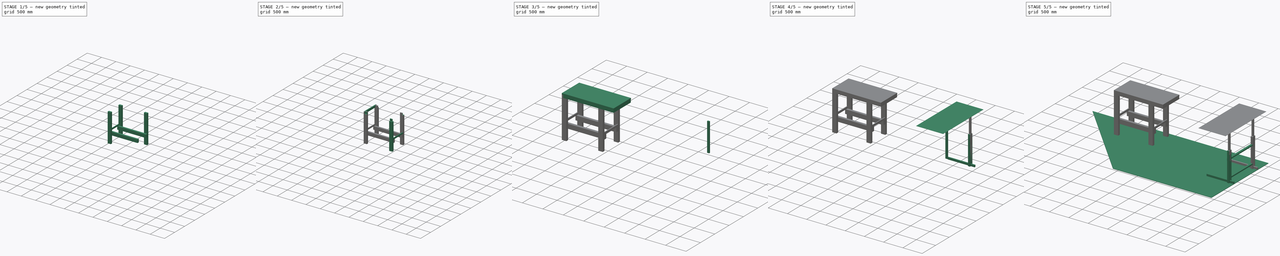
[diagram: build sequence overview — one tinted view per stage of 5, left to right]
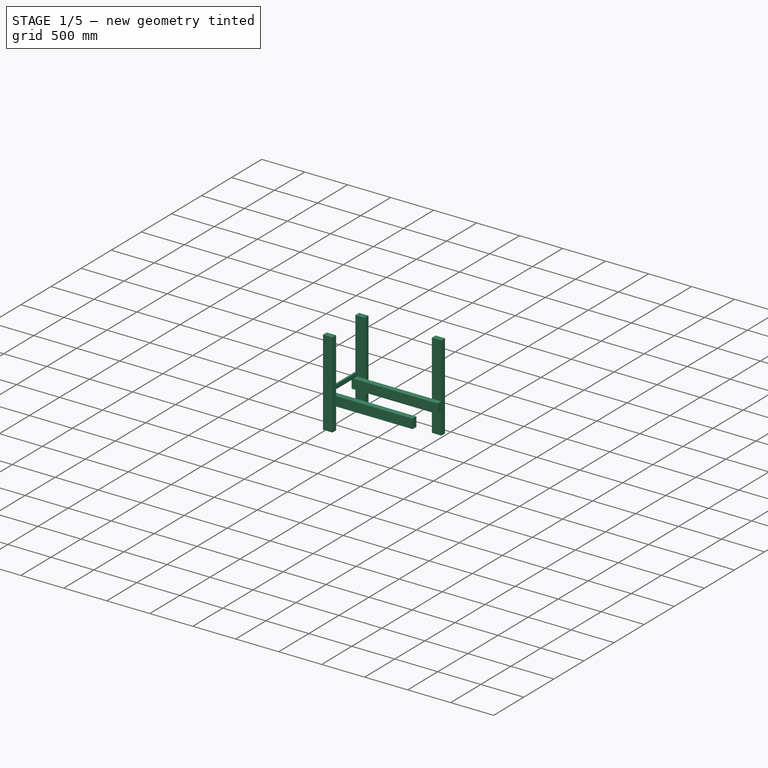
[diagram: stage 1 of 5 — iso view after this stage's code; geometry added in this stage tinted green]
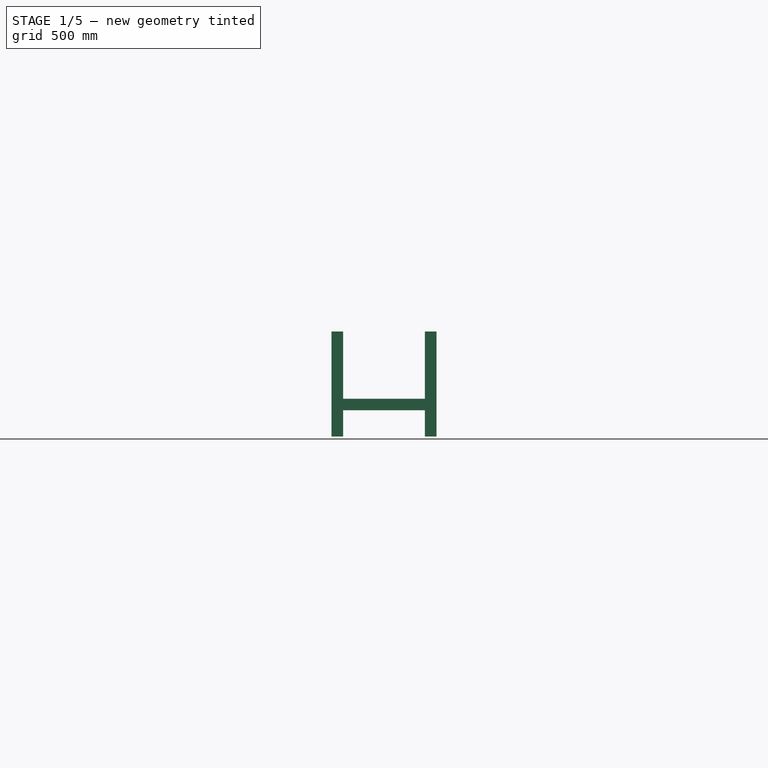
[diagram: stage 1 of 5 — front view after this stage's code; geometry added in this stage tinted green]
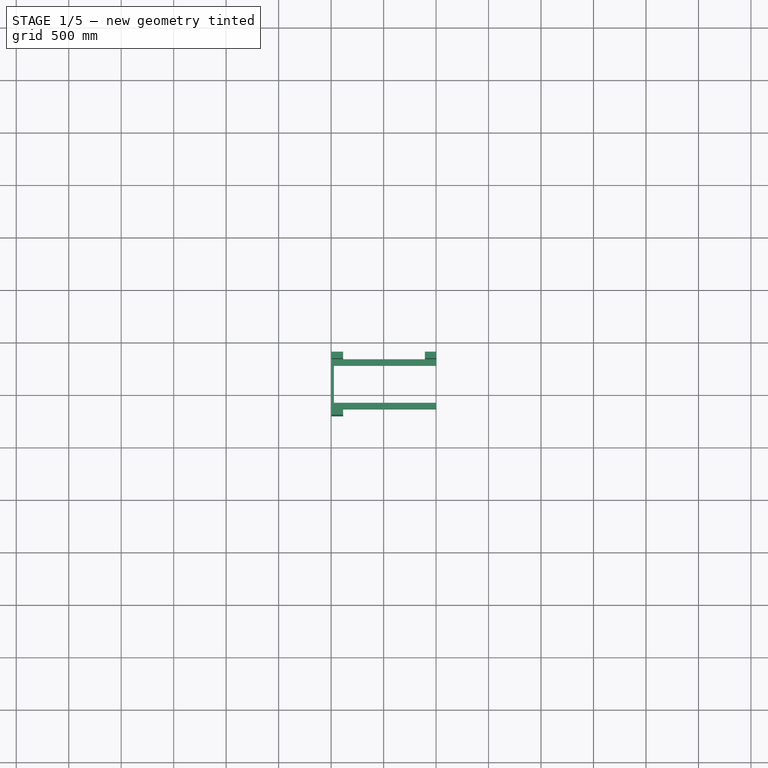
[diagram: stage 1 of 5 — top view after this stage's code; geometry added in this stage tinted green]
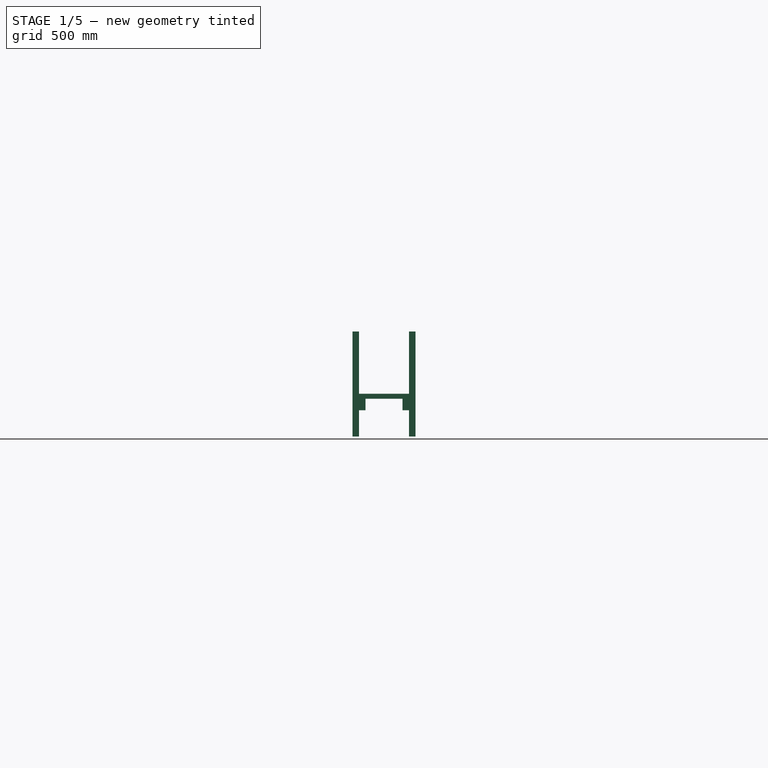
[diagram: stage 1 of 5 — right view after this stage's code; geometry added in this stage tinted green]
FCSTD DOCUMENT  (FreeCAD 0.20R29177 (Git))
Label: oficina v2
License: All rights reserved
LicenseURL: http://en.wikipedia.org/wiki/All_rights_reserved
objects: Sketcher::SketchObject×37, PartDesign::Pad×31, PartDesign::Pocket×6, PartDesign::Body×4, App::DocumentObjectGroup×2
note: 115 computed .brp shape members not serialized (recipe doc carries the construction recipe); baked Part::Feature solids carry a one-line shape summary decoded from their .brp

FEATURE [PartDesign::Body] Body  label="area"
  Group = -> [Sketch,Pad015]
  Origin = -> Origin
  Tip = -> Pad015
FEATURE [App::DocumentObjectGroup] Group  label="Mesa de Trabalho"
  Group = -> [Body001,Body002]
FEATURE [Sketcher::SketchObject] Sketch016
  FullyConstrained = true
  MapMode = 5
  Support = -> [XY_Plane003]
  sketch-geometry (4):
    g0: LineSegment StartX=-3496.16 StartY=-100 StartZ=0 EndX=-3386.16 EndY=-100 EndZ=0
    g1: LineSegment StartX=-3386.16 StartY=-100 StartZ=0 EndX=-3386.16 EndY=-161.7 EndZ=0
    g2: LineSegment StartX=-3386.16 StartY=-161.7 StartZ=0 EndX=-3496.16 EndY=-161.7 EndZ=0
    g3: LineSegment StartX=-3496.16 StartY=-161.7 StartZ=0 EndX=-3496.16 EndY=-100 EndZ=0
  constraints (12):
    c: Coincident(g0,g1)
    c: Coincident(g1,g2)
    c: Coincident(g2,g3)
    c: Coincident(g3,g0)
    c: Horizontal(g0)
    c: Horizontal(g2)
    c: Vertical(g1)
    c: Vertical(g3)
    c: DistanceX(g0,g0) = 110
    c: DistanceY(g1,g1) = 61.7
    c: DistanceX(g0) = -3386.16
    c: DistanceY(g0) = -100
FEATURE [PartDesign::Pad] Pad016  label="Pe traseiro esquerdo - Madeira 1"
  Direction = (1,1,1)
  Length = 1000
  Length2 = 100
  Profile = -> Sketch016
  Type = 0
FEATURE [Sketcher::SketchObject] Sketch017
  ExternalGeometry = -> [Sketch016]
  FullyConstrained = true
  MapMode = 5
  Placement = pos=(0,-161.7,0) rot=(1,0,0;1.5708rad)
  Support = -> [Pad016]
  sketch-geometry (4):
    g0: LineSegment StartX=-3496.16 StartY=360 StartZ=0 EndX=-2496.16 EndY=360 EndZ=0
    g1: LineSegment StartX=-2496.16 StartY=360 StartZ=0 EndX=-2496.16 EndY=250 EndZ=0
    g2: LineSegment StartX=-2496.16 StartY=250 StartZ=0 EndX=-3496.16 EndY=250 EndZ=0
    g3: LineSegment StartX=-3496.16 StartY=250 StartZ=0 EndX=-3496.16 EndY=360 EndZ=0
  constraints (12):
    c: Coincident(g0,g1)
    c: Coincident(g1,g2)
    c: Coincident(g2,g3)
    c: Coincident(g3,g0)
    c: Horizontal(g0)
    c: Horizontal(g2)
    c: Vertical(g1)
    c: Vertical(g3)
    c: DistanceY(g3,g3) = 110
    c: DistanceX(g2,g-3) = 0
    c: DistanceX(g2,g2) = 1000
    c: DistanceY(g-3,g2) = 250
FEATURE [PartDesign::Pad] Pad017  label="Viga Traseira - Madeira 1"
  BaseFeature = -> Pad016
  Direction = (1,1,1)
  Length = 61.7
  Length2 = 100
  Profile = -> Sketch017
  Type = 0
FEATURE [Sketcher::SketchObject] Sketch018
  ExternalGeometry = -> [Pad017,Sketch016]
  FullyConstrained = true
  MapMode = 5
  Placement = pos=(0,-161.7,4.2e-14) rot=(0,0.707107,0.707107;3.14159rad)
  Support = -> [Pad017]
  sketch-geometry (4):
    g0: LineSegment StartX=2496.16 StartY=1000 StartZ=0 EndX=2606.16 EndY=1000 EndZ=0
    g1: LineSegment StartX=2606.16 StartY=1000 StartZ=0 EndX=2606.16 EndY=0 EndZ=0
    g2: LineSegment StartX=2606.16 StartY=0 StartZ=0 EndX=2496.16 EndY=0 EndZ=0
    g3: LineSegment StartX=2496.16 StartY=0 StartZ=0 EndX=2496.16 EndY=1000 EndZ=0
  constraints (12):
    c: Coincident(g0,g1)
    c: Coincident(g1,g2)
    c: Coincident(g2,g3)
    c: Coincident(g3,g0)
    c: Horizontal(g0)
    c: Horizontal(g2)
    c: Vertical(g1)
    c: Vertical(g3)
    c: DistanceX(g2,g2) = 110
    c: DistanceY(g-4,g1) = 0
    c: DistanceX(g-3,g2) = 0
    c: DistanceY(g0,g-5) = 0
FEATURE [PartDesign::Pad] Pad018  label="Pe traseiro Direito - Madeira 1"
  BaseFeature = -> Pad017
  Direction = (1,1,1)
  Length = 61.7
  Length2 = 100
  Profile = -> Sketch018
  Type = 0
FEATURE [Sketcher::SketchObject] Sketch019
  ExternalGeometry = -> [Pad018]
  FullyConstrained = true
  MapMode = 5
  Placement = pos=(-3496.16,0,0) rot=(0.57735,-0.57735,-0.57735;2.0944rad)
  Support = -> [Pad018]
  sketch-geometry (4):
    g0: LineSegment StartX=100 StartY=407.2 StartZ=0 EndX=161.7 EndY=407.2 EndZ=0
    g1: LineSegment StartX=161.7 StartY=407.2 StartZ=0 EndX=161.7 EndY=360 EndZ=0
    g2: LineSegment StartX=161.7 StartY=360 StartZ=0 EndX=100 EndY=360 EndZ=0
    g3: LineSegment StartX=100 StartY=360 StartZ=0 EndX=100 EndY=407.2 EndZ=0
  constraints (12):
    c: Coincident(g0,g1)
    c: Coincident(g1,g2)
    c: Coincident(g2,g3)
    c: Coincident(g3,g0)
    c: Horizontal(g0)
    c: Horizontal(g2)
    c: Vertical(g1)
    c: Vertical(g3)
    c: DistanceX(g1,g-3) = 0
    c: DistanceY(g-3,g1) = 0
    c: DistanceY(g1,g1) = 47.2
    c: DistanceX(g-4,g2) = 0
FEATURE [PartDesign::Pocket] Pocket
  BaseFeature = -> Pad018
  Direction = (1,1,1)
  Length = 22.1
  Length2 = 100
  Profile = -> Sketch019
  Type = 0
FEATURE [Sketcher::SketchObject] Sketch020
  ExternalGeometry = -> [Pocket]
  FullyConstrained = true
  MapMode = 5
  Placement = pos=(-3474.06,0,0) rot=(0.57735,-0.57735,-0.57735;2.0944rad)
  Support = -> [Pocket]
  sketch-geometry (4):
    g0: LineSegment StartX=100 StartY=407.2 StartZ=0 EndX=700 EndY=407.2 EndZ=0
    g1: LineSegment StartX=700 StartY=407.2 StartZ=0 EndX=700 EndY=360 EndZ=0
    g2: LineSegment StartX=700 StartY=360 StartZ=0 EndX=100 EndY=360 EndZ=0
    g3: LineSegment StartX=100 StartY=360 StartZ=0 EndX=100 EndY=407.2 EndZ=0
  constraints (11):
    c: Coincident(g0,g1)
    c: Coincident(g1,g2)
    c: Coincident(g2,g3)
    c: Coincident(g3,g0)
    c: Horizontal(g0)
    c: Horizontal(g2)
    c: Vertical(g1)
    c: Vertical(g3)
    c: Coincident(g2,g-3)
    c: DistanceY(g1,g1) = 47.2
    c: DistanceX(g0,g0) = 600
FEATURE [PartDesign::Pad] Pad019  label="Viga lateral Esquerda - Madeira 15"
  BaseFeature = -> Pocket
  Direction = (1,1,1)
  Length = 22.1
  Length2 = 100
  Profile = -> Sketch020
  Type = 0
FEATURE [Sketcher::SketchObject] Sketch021
  ExternalGeometry = -> [Pad019,Sketch016]
  FullyConstrained = true
  MapMode = 5
  Placement = pos=(-3496.16,0,0) rot=(0.57735,-0.57735,-0.57735;2.0944rad)
  Support = -> [Pad019]
  sketch-geometry (4):
    g0: LineSegment StartX=638.3 StartY=1000 StartZ=0 EndX=700 EndY=1000 EndZ=0
    g1: LineSegment StartX=700 StartY=1000 StartZ=0 EndX=700 EndY=0 EndZ=0
    g2: LineSegment StartX=700 StartY=0 StartZ=0 EndX=638.3 EndY=0 EndZ=0
    g3: LineSegment StartX=638.3 StartY=0 StartZ=0 EndX=638.3 EndY=1000 EndZ=0
  constraints (12):
    c: Coincident(g0,g1)
    c: Coincident(g1,g2)
    c: Coincident(g2,g3)
    c: Coincident(g3,g0)
    c: Horizontal(g0)
    c: Horizontal(g2)
    c: Vertical(g1)
    c: Vertical(g3)
    c: DistanceX(g1,g-5) = 0
    c: DistanceX(g2,g2) = 61.7
    c: DistanceY(g-4,g2) = 0
    c: DistanceY(g0,g-3) = 0
FEATURE [PartDesign::Pad] Pad020  label="Pe Dianteiro Esquerdo - Madeira 1"
  BaseFeature = -> Pad019
  Direction = (1,1,1)
  Length = 110
  Length2 = 100
  Profile = -> Sketch021
  Reversed = true
  Type = 0
FEATURE [Sketcher::SketchObject] Sketch022
  ExternalGeometry = -> [Pad020,Sketch016]
  FullyConstrained = true
  MapMode = 5
  Placement = pos=(0,-638.3,0) rot=(0,0.707107,0.707107;3.14159rad)
  Support = -> [Pad020]
  sketch-geometry (4):
    g0: LineSegment StartX=2496.16 StartY=360 StartZ=0 EndX=3496.16 EndY=360 EndZ=0
    g1: LineSegment StartX=3496.16 StartY=360 StartZ=0 EndX=3496.16 EndY=250 EndZ=0
    g2: LineSegment StartX=3496.16 StartY=250 StartZ=0 EndX=2496.16 EndY=250 EndZ=0
    g3: LineSegment StartX=2496.16 StartY=250 StartZ=0 EndX=2496.16 EndY=360 EndZ=0
  constraints (12):
    c: Coincident(g0,g1)
    c: Coincident(g1,g2)
    c: Coincident(g2,g3)
    c: Coincident(g3,g0)
    c: Horizontal(g0)
    c: Horizontal(g2)
    c: Vertical(g1)
    c: Vertical(g3)
    c: DistanceY(g-6,g1) = 0
    c: DistanceY(g-3,g0) = 0
    c: DistanceX(g1,g-4) = 0
    c: DistanceX(g-5,g2) = 0
FEATURE [PartDesign::Pad] Pad021  label="Viga Dianteira - Madeira 1"
  BaseFeature = -> Pad020
  Direction = (1,1,1)
  Length = 61.7
  Length2 = 100
  Profile = -> Sketch022
  Type = 0
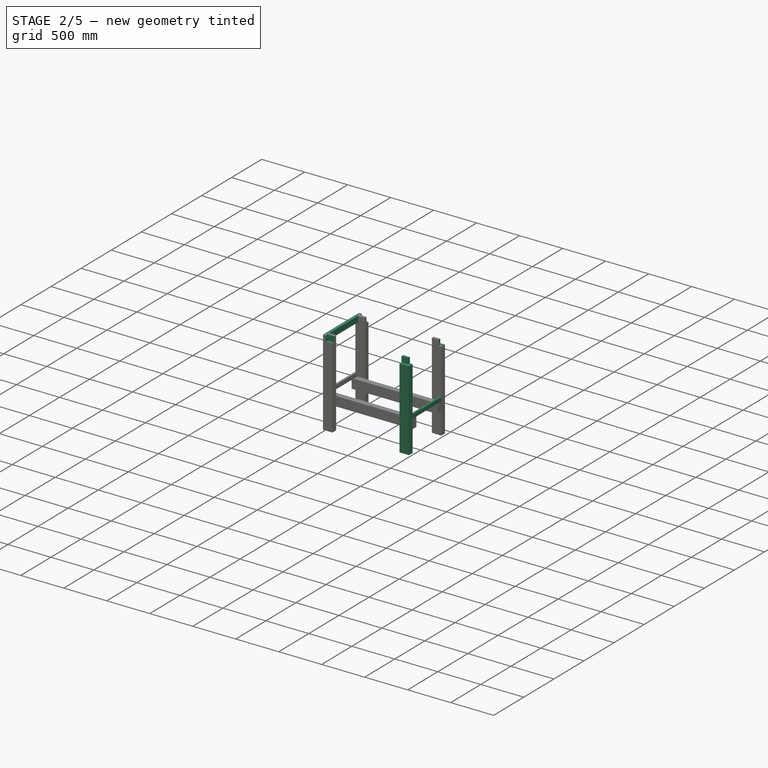
[diagram: stage 2 of 5 — iso view after this stage's code; geometry added in this stage tinted green]
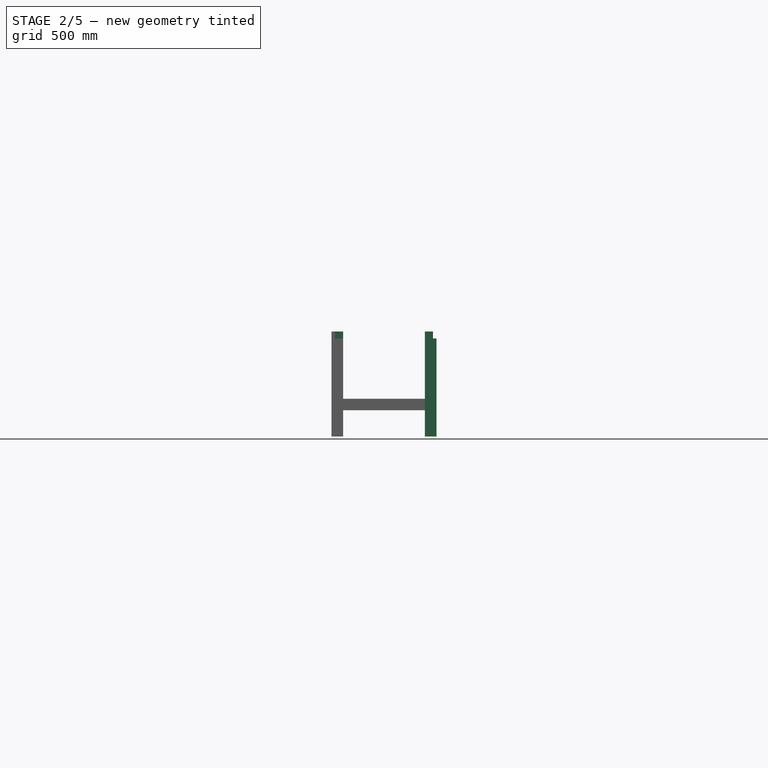
[diagram: stage 2 of 5 — front view after this stage's code; geometry added in this stage tinted green]
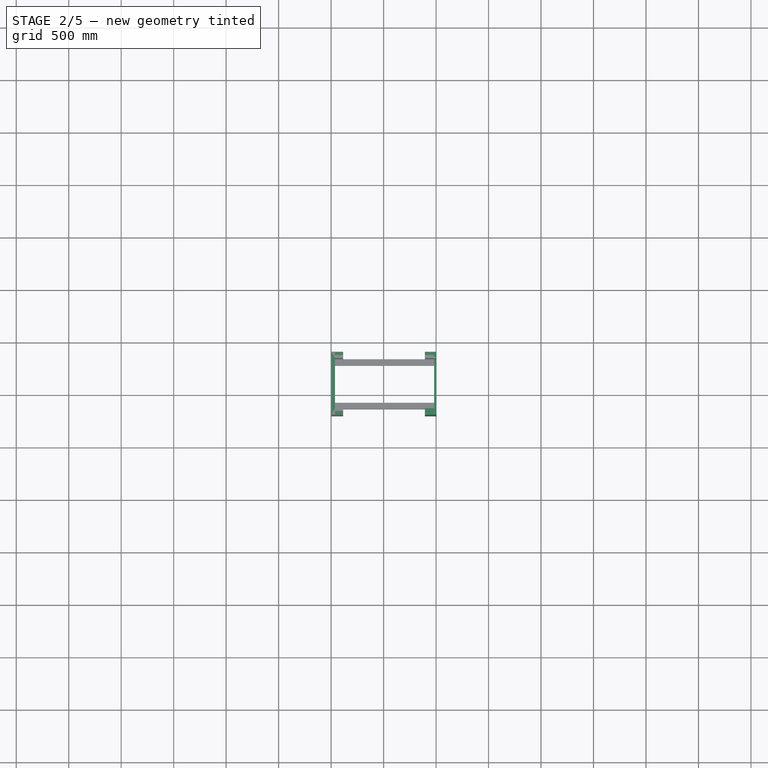
[diagram: stage 2 of 5 — top view after this stage's code; geometry added in this stage tinted green]
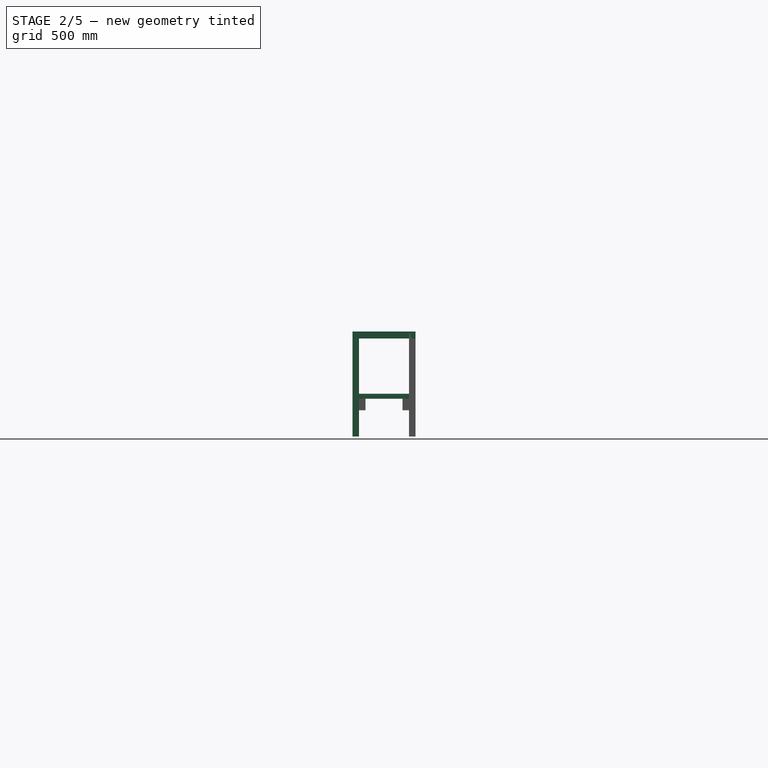
[diagram: stage 2 of 5 — right view after this stage's code; geometry added in this stage tinted green]
FEATURE [Sketcher::SketchObject] Sketch023
  ExternalGeometry = -> [Pad021]
  FullyConstrained = true
  MapMode = 5
  Placement = pos=(0,-638.3,6.574e-13) rot=(1,0,0;1.5708rad)
  Support = -> [Pad021]
  sketch-geometry (4):
    g0: LineSegment StartX=-2606.16 StartY=1000 StartZ=0 EndX=-2496.16 EndY=1000 EndZ=0
    g1: LineSegment StartX=-2496.16 StartY=1000 StartZ=0 EndX=-2496.16 EndY=-1.137e-13 EndZ=0
    g2: LineSegment StartX=-2496.16 StartY=-1.137e-13 StartZ=0 EndX=-2606.16 EndY=-1.137e-13 EndZ=0
    g3: LineSegment StartX=-2606.16 StartY=-1.137e-13 StartZ=0 EndX=-2606.16 EndY=1000 EndZ=0
  constraints (10):
    c: Coincident(g0,g1)
    c: Coincident(g1,g2)
    c: Coincident(g2,g3)
    c: Coincident(g3,g0)
    c: Horizontal(g0)
    c: Horizontal(g2)
    c: Vertical(g1)
    c: Vertical(g3)
    c: Coincident(g1,g-5)
    c: Coincident(g0,g-4)
FEATURE [PartDesign::Pad] Pad022  label="Pe Dianteiro Direito - Madeira 1"
  BaseFeature = -> Pad021
  Direction = (1,1,1)
  Length = 61.7
  Length2 = 100
  Profile = -> Sketch023
  Type = 0
FEATURE [Sketcher::SketchObject] Sketch024
  ExternalGeometry = -> [Pad022]
  FullyConstrained = true
  MapMode = 5
  Placement = pos=(-2496.16,0,0) rot=(0.57735,0.57735,0.57735;2.0944rad)
  Support = -> [Pad022]
  sketch-geometry (8):
    g0: LineSegment StartX=-700 StartY=407.2 StartZ=0 EndX=-638.3 EndY=407.2 EndZ=0
    g1: LineSegment StartX=-638.3 StartY=407.2 StartZ=0 EndX=-638.3 EndY=360 EndZ=0
    g2: LineSegment StartX=-638.3 StartY=360 StartZ=0 EndX=-700 EndY=360 EndZ=0
    g3: LineSegment StartX=-700 StartY=360 StartZ=0 EndX=-700 EndY=407.2 EndZ=0
    g4: LineSegment StartX=-161.7 StartY=407.2 StartZ=0 EndX=-100 EndY=407.2 EndZ=0
    g5: LineSegment StartX=-100 StartY=407.2 StartZ=0 EndX=-100 EndY=360 EndZ=0
    g6: LineSegment StartX=-100 StartY=360 StartZ=0 EndX=-161.7 EndY=360 EndZ=0
    g7: LineSegment StartX=-161.7 StartY=360 StartZ=0 EndX=-161.7 EndY=407.2 EndZ=0
  constraints (23):
    c: Coincident(g0,g1)
    c: Coincident(g1,g2)
    c: Coincident(g2,g3)
    c: Coincident(g3,g0)
    c: Horizontal(g0)
    c: Horizontal(g2)
    c: Vertical(g1)
    c: Vertical(g3)
    c: Coincident(g1,g-3)
    c: DistanceX(g2,g-4) = 0
    c: DistanceY(g-8,g0) = 0
    c: Coincident(g4,g5)
    c: Coincident(g5,g6)
    c: Coincident(g6,g7)
    c: Coincident(g7,g4)
    c: Horizontal(g4)
    c: Horizontal(g6)
    c: Vertical(g5)
    c: Vertical(g7)
    c: DistanceY(g1,g6) = 0
    c: DistanceY(g-8,g4) = 0
    c: DistanceX(g4,g-8) = 0
    c: DistanceX(g-7,g5) = 0
FEATURE [PartDesign::Pocket] Pocket001
  BaseFeature = -> Pad022
  Direction = (1,1,1)
  Length = 22.1
  Length2 = 100
  Profile = -> Sketch024
  Type = 0
FEATURE [Sketcher::SketchObject] Sketch025
  ExternalGeometry = -> [Pocket001]
  FullyConstrained = true
  MapMode = 5
  Placement = pos=(-2518.26,0,0) rot=(0.57735,0.57735,0.57735;2.0944rad)
  Support = -> [Pocket001]
  sketch-geometry (4):
    g0: LineSegment StartX=-700 StartY=407.2 StartZ=0 EndX=-100 EndY=407.2 EndZ=0
    g1: LineSegment StartX=-100 StartY=407.2 StartZ=0 EndX=-100 EndY=360 EndZ=0
    g2: LineSegment StartX=-100 StartY=360 StartZ=0 EndX=-700 EndY=360 EndZ=0
    g3: LineSegment StartX=-700 StartY=360 StartZ=0 EndX=-700 EndY=407.2 EndZ=0
  constraints (10):
    c: Coincident(g0,g1)
    c: Coincident(g1,g2)
    c: Coincident(g2,g3)
    c: Coincident(g3,g0)
    c: Horizontal(g0)
    c: Horizontal(g2)
    c: Vertical(g1)
    c: Vertical(g3)
    c: Coincident(g2,g-3)
    c: Coincident(g0,g-4)
FEATURE [PartDesign::Pad] Pad023  label="Viga Leterial Direita - Madeira 15"
  BaseFeature = -> Pocket001
  Direction = (1,1,1)
  Length = 22.1
  Length2 = 100
  Profile = -> Sketch025
  Type = 0
FEATURE [Sketcher::SketchObject] Sketch026
  ExternalGeometry = -> [Pad023]
  FullyConstrained = true
  MapMode = 5
  Placement = pos=(-3496.16,0,0) rot=(0.57735,-0.57735,-0.57735;2.0944rad)
  Support = -> [Pad023]
  sketch-geometry (8):
    g0: LineSegment StartX=100 StartY=1000 StartZ=0 EndX=161.7 EndY=1000 EndZ=0
    g1: LineSegment StartX=161.7 StartY=1000 StartZ=0 EndX=161.7 EndY=934 EndZ=0
    g2: LineSegment StartX=161.7 StartY=934 StartZ=0 EndX=100 EndY=934 EndZ=0
    g3: LineSegment StartX=100 StartY=934 StartZ=0 EndX=100 EndY=1000 EndZ=0
    g4: LineSegment StartX=638.3 StartY=1000 StartZ=0 EndX=700 EndY=1000 EndZ=0
    g5: LineSegment StartX=700 StartY=1000 StartZ=0 EndX=700 EndY=934 EndZ=0
    g6: LineSegment StartX=700 StartY=934 StartZ=0 EndX=638.3 EndY=934 EndZ=0
    g7: LineSegment StartX=638.3 StartY=934 StartZ=0 EndX=638.3 EndY=1000 EndZ=0
  constraints (22):
    c: Coincident(g0,g1)
    c: Coincident(g1,g2)
    c: Coincident(g2,g3)
    c: Coincident(g3,g0)
    c: Horizontal(g0)
    c: Horizontal(g2)
    c: Vertical(g1)
    c: Vertical(g3)
    c: Coincident(g4,g5)
    c: Coincident(g5,g6)
    c: Coincident(g6,g7)
    c: Coincident(g7,g4)
    c: Horizontal(g4)
    c: Horizontal(g6)
    c: Vertical(g5)
    c: Vertical(g7)
    c: Coincident(g4,g-5)
    c: Coincident(g0,g-3)
    c: DistanceX(g-4,g0) = 0
    c: DistanceX(g-6,g4) = 0
    c: DistanceY(g3,g3) = 66
    c: Equal(g3,g7)
FEATURE [PartDesign::Pocket] Pocket002
  BaseFeature = -> Pad023
  Direction = (1,1,1)
  Length = 32.8
  Length2 = 100
  Profile = -> Sketch026
  Type = 0
FEATURE [Sketcher::SketchObject] Sketch027
  ExternalGeometry = -> [Pocket002]
  FullyConstrained = true
  MapMode = 5
  Placement = pos=(-2496.16,0,0) rot=(0.57735,0.57735,0.57735;2.0944rad)
  Support = -> [Pocket002]
  sketch-geometry (8):
    g0: LineSegment StartX=-700 StartY=1000 StartZ=0 EndX=-638.3 EndY=1000 EndZ=0
    g1: LineSegment StartX=-638.3 StartY=1000 StartZ=0 EndX=-638.3 EndY=934 EndZ=0
    g2: LineSegment StartX=-638.3 StartY=934 StartZ=0 EndX=-700 EndY=934 EndZ=0
    g3: LineSegment StartX=-700 StartY=934 StartZ=0 EndX=-700 EndY=1000 EndZ=0
    g4: LineSegment StartX=-161.7 StartY=1000 StartZ=0 EndX=-100 EndY=1000 EndZ=0
    g5: LineSegment StartX=-100 StartY=1000 StartZ=0 EndX=-100 EndY=934 EndZ=0
    g6: LineSegment StartX=-100 StartY=934 StartZ=0 EndX=-161.7 EndY=934 EndZ=0
    g7: LineSegment StartX=-161.7 StartY=934 StartZ=0 EndX=-161.7 EndY=1000 EndZ=0
  constraints (22):
    c: Coincident(g0,g1)
    c: Coincident(g1,g2)
    c: Coincident(g2,g3)
    c: Coincident(g3,g0)
    c: Horizontal(g0)
    c: Horizontal(g2)
    c: Vertical(g1)
    c: Vertical(g3)
    c: Coincident(g4,g5)
    c: Coincident(g5,g6)
    c: Coincident(g6,g7)
    c: Coincident(g7,g4)
    c: Horizontal(g4)
    c: Horizontal(g6)
    c: Vertical(g5)
    c: Vertical(g7)
    c: Coincident(g0,g-3)
    c: Coincident(g4,g-5)
    c: DistanceX(g-6,g4) = 0
    c: DistanceX(g-4,g0) = 0
    c: DistanceY(g7,g7) = 66
    c: Equal(g7,g3)
FEATURE [PartDesign::Pocket] Pocket003
  BaseFeature = -> Pocket002
  Direction = (1,1,1)
  Length = 32.6
  Length2 = 100
  Profile = -> Sketch027
  Type = 0
FEATURE [Sketcher::SketchObject] Sketch028
  ExternalGeometry = -> [Pocket003]
  FullyConstrained = true
  MapMode = 5
  Placement = pos=(0,-700,0) rot=(1,0,0;1.5708rad)
  Support = -> [Pocket003]
  sketch-geometry (8):
    g0: LineSegment StartX=-3463.36 StartY=1000 StartZ=0 EndX=-3386.16 EndY=1000 EndZ=0
    g1: LineSegment StartX=-3386.16 StartY=1000 StartZ=0 EndX=-3386.16 EndY=934 EndZ=0
    g2: LineSegment StartX=-3386.16 StartY=934 StartZ=0 EndX=-3463.36 EndY=934 EndZ=0
    g3: LineSegment StartX=-3463.36 StartY=934 StartZ=0 EndX=-3463.36 EndY=1000 EndZ=0
    g4: LineSegment StartX=-2606.16 StartY=1000 StartZ=0 EndX=-2528.76 EndY=1000 EndZ=0
    g5: LineSegment StartX=-2528.76 StartY=1000 StartZ=0 EndX=-2528.76 EndY=934 EndZ=0
    g6: LineSegment StartX=-2528.76 StartY=934 StartZ=0 EndX=-2606.16 EndY=934 EndZ=0
    g7: LineSegment StartX=-2606.16 StartY=934 StartZ=0 EndX=-2606.16 EndY=1000 EndZ=0
  constraints (20):
    c: Coincident(g0,g1)
    c: Coincident(g1,g2)
    c: Coincident(g2,g3)
    c: Coincident(g3,g0)
    c: Horizontal(g0)
    c: Horizontal(g2)
    c: Vertical(g1)
    c: Vertical(g3)
    c: Coincident(g4,g5)
    c: Coincident(g5,g6)
    c: Coincident(g6,g7)
    c: Coincident(g7,g4)
    c: Horizontal(g4)
    c: Horizontal(g6)
    c: Vertical(g5)
    c: Vertical(g7)
    c: Coincident(g2,g-4)
    c: Coincident(g5,g-7)
    c: Coincident(g-6,g4)
    c: Coincident(g-5,g0)
FEATURE [PartDesign::Pocket] Pocket004
  BaseFeature = -> Pocket003
  Direction = (1,1,1)
  Length = 32.8
  Length2 = 100
  Profile = -> Sketch028
  Type = 0
FEATURE [Sketcher::SketchObject] Sketch029
  ExternalGeometry = -> [Pocket004]
  FullyConstrained = true
  MapMode = 5
  Placement = pos=(0,-100,2.3e-14) rot=(0,0.707107,0.707107;3.14159rad)
  Support = -> [Pocket004]
  sketch-geometry (8):
    g0: LineSegment StartX=2528.76 StartY=1000 StartZ=0 EndX=2606.16 EndY=1000 EndZ=0
    g1: LineSegment StartX=2606.16 StartY=1000 StartZ=0 EndX=2606.16 EndY=934 EndZ=0
    g2: LineSegment StartX=2606.16 StartY=934 StartZ=0 EndX=2528.76 EndY=934 EndZ=0
    g3: LineSegment StartX=2528.76 StartY=934 StartZ=0 EndX=2528.76 EndY=1000 EndZ=0
    g4: LineSegment StartX=3386.16 StartY=1000 StartZ=0 EndX=3463.36 EndY=1000 EndZ=0
    g5: LineSegment StartX=3463.36 StartY=1000 StartZ=0 EndX=3463.36 EndY=934 EndZ=0
    g6: LineSegment StartX=3463.36 StartY=934 StartZ=0 EndX=3386.16 EndY=934 EndZ=0
    g7: LineSegment StartX=3386.16 StartY=934 StartZ=0 EndX=3386.16 EndY=1000 EndZ=0
  constraints (20):
    c: Coincident(g0,g1)
    c: Coincident(g1,g2)
    c: Coincident(g2,g3)
    c: Coincident(g3,g0)
    c: Horizontal(g0)
    c: Horizontal(g2)
    c: Vertical(g1)
    c: Vertical(g3)
    c: Coincident(g4,g5)
    c: Coincident(g5,g6)
    c: Coincident(g6,g7)
    c: Coincident(g7,g4)
    c: Horizontal(g4)
    c: Horizontal(g6)
    c: Vertical(g5)
    c: Vertical(g7)
    c: Coincident(g5,g-6)
    c: Coincident(g-5,g4)
    c: Coincident(g0,g-4)
    c: Coincident(g-3,g2)
FEATURE [PartDesign::Pocket] Pocket005
  BaseFeature = -> Pocket004
  Direction = (1,1,1)
  Length = 32.8
  Length2 = 100
  Profile = -> Sketch029
  Type = 0
FEATURE [Sketcher::SketchObject] Sketch030
  ExternalGeometry = -> [Pocket005]
  FullyConstrained = true
  MapMode = 5
  Placement = pos=(-3463.36,0,0) rot=(0.57735,-0.57735,-0.57735;2.0944rad)
  Support = -> [Pocket005]
  sketch-geometry (4):
    g0: LineSegment StartX=100 StartY=1000 StartZ=0 EndX=700 EndY=1000 EndZ=0
    g1: LineSegment StartX=700 StartY=1000 StartZ=0 EndX=700 EndY=934 EndZ=0
    g2: LineSegment StartX=700 StartY=934 StartZ=0 EndX=100 EndY=934 EndZ=0
    g3: LineSegment StartX=100 StartY=934 StartZ=0 EndX=100 EndY=1000 EndZ=0
  constraints (11):
    c: Coincident(g0,g1)
    c: Coincident(g1,g2)
    c: Coincident(g2,g3)
    c: Coincident(g3,g0)
    c: Horizontal(g0)
    c: Horizontal(g2)
    c: Vertical(g1)
    c: Vertical(g3)
    c: Coincident(g2,g-3)
    c: DistanceX(g-4,g1) = 0
    c: DistanceY(g-5,g0) = 0
FEATURE [PartDesign::Pad] Pad024  label="Borda Lateral Esquerda - Madeira 9"
  BaseFeature = -> Pocket005
  Direction = (1,1,1)
  Length = 32.8
  Length2 = 100
  Profile = -> Sketch030
  Type = 0
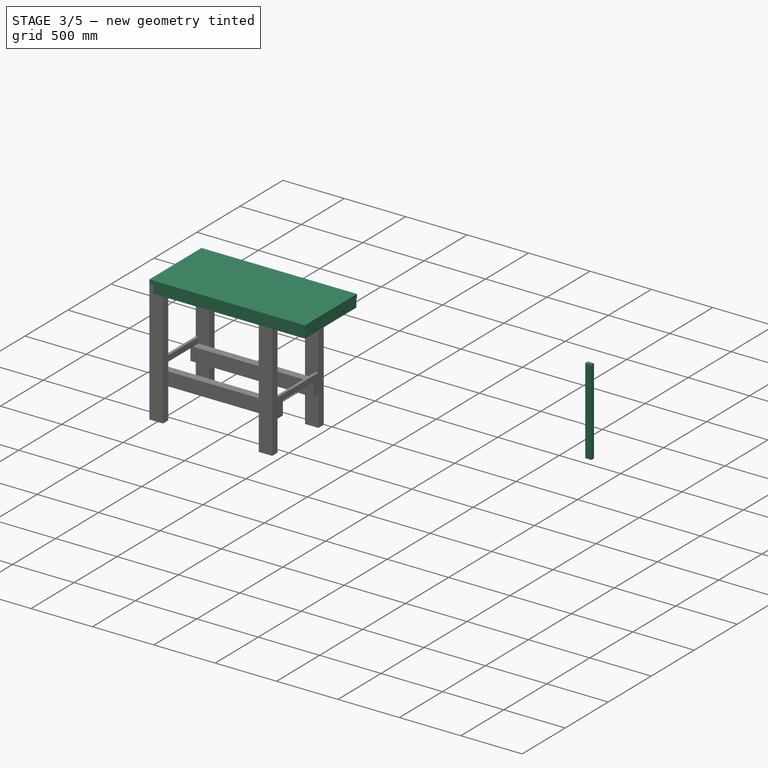
[diagram: stage 3 of 5 — iso view after this stage's code; geometry added in this stage tinted green]
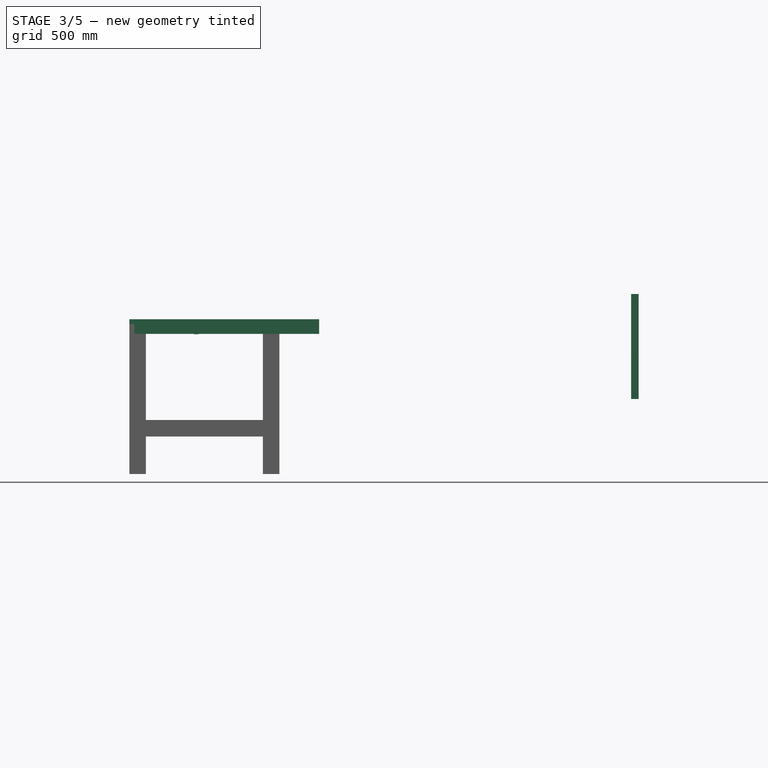
[diagram: stage 3 of 5 — front view after this stage's code; geometry added in this stage tinted green]
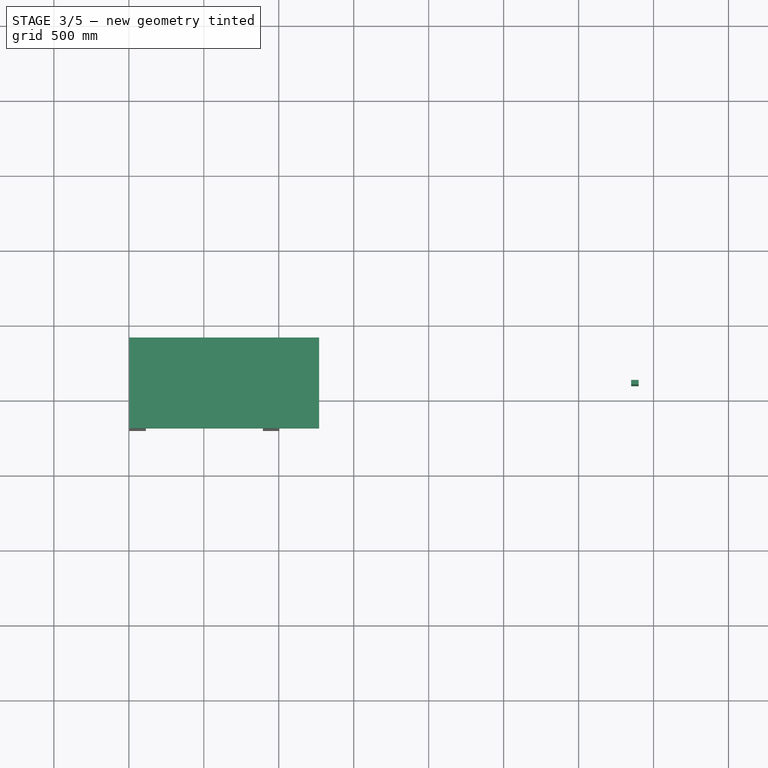
[diagram: stage 3 of 5 — top view after this stage's code; geometry added in this stage tinted green]
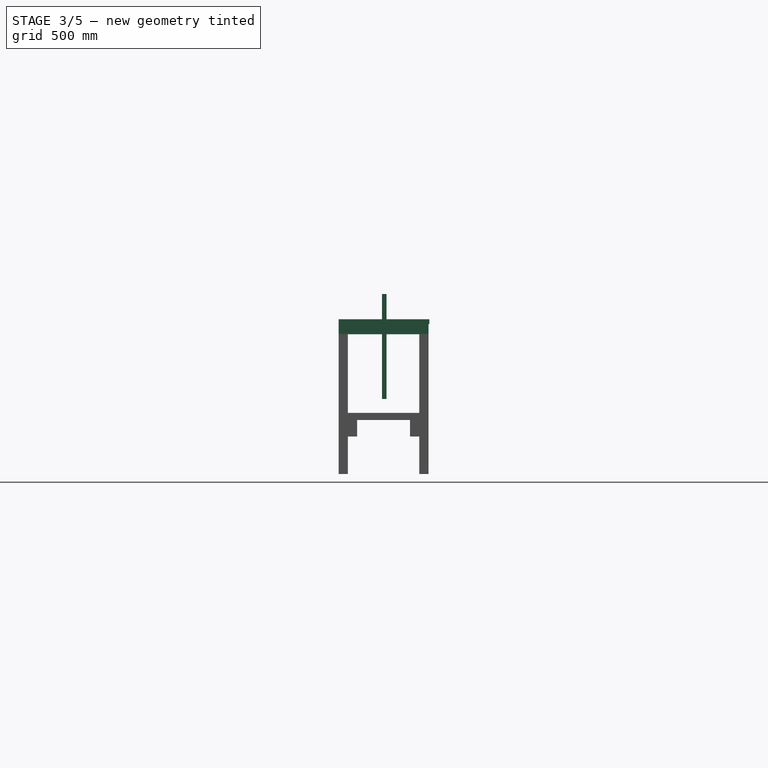
[diagram: stage 3 of 5 — right view after this stage's code; geometry added in this stage tinted green]
FEATURE [PartDesign::Body] Body001  label="parteDeBaixo"
  Group = -> [Sketch001,Pad,Sketch002,Pad001,Sketch003,Pad002,Sketch004,Pad003,Sketch005,Pad004,Sketch006,Pad005,Sketch007,Pad006,Sketch008,Pad007,Sketch009,Pad008]
  Origin = -> Origin001
  Tip = -> Pad008
FEATURE [Sketcher::SketchObject] Sketch010
  AttachmentOffset = pos=(0,0,500) rot=(0,0,1;0rad)
  FullyConstrained = true
  MapMode = 5
  Placement = pos=(0,0,500) rot=(0,0,1;0rad)
  Support = -> [XY_Plane002]
  expr: Constraints[11] = -(50 + 300 + 30 + 30)
  sketch-geometry (4):
    g0: LineSegment StartX=-150 StartY=-380 StartZ=0 EndX=-100 EndY=-380 EndZ=0
    g1: LineSegment StartX=-100 StartY=-380 StartZ=0 EndX=-100 EndY=-410 EndZ=0
    g2: LineSegment StartX=-100 StartY=-410 StartZ=0 EndX=-150 EndY=-410 EndZ=0
    g3: LineSegment StartX=-150 StartY=-410 StartZ=0 EndX=-150 EndY=-380 EndZ=0
  constraints (12):
    c: Coincident(g0,g1)
    c: Coincident(g1,g2)
    c: Coincident(g2,g3)
    c: Coincident(g3,g0)
    c: Horizontal(g0)
    c: Horizontal(g2)
    c: Vertical(g1)
    c: Vertical(g3)
    c: DistanceX(g0,g0) = 50
    c: DistanceY(g1,g1) = 30
    c: DistanceX(g1) = -100
    c: DistanceY(g1) = -410
FEATURE [PartDesign::Pad] Pad009  label="baseEsquerda001"
  Direction = (1,1,1)
  Length = 700
  Length2 = 100
  Profile = -> Sketch010
  Type = 0
  expr: Length = 750 - 50
FEATURE [Sketcher::SketchObject] Sketch032
  ExternalGeometry = -> [Pad024]
  FullyConstrained = true
  MapMode = 5
  Placement = pos=(0,-132.8,2.92e-14) rot=(0,0.707107,0.707107;3.14159rad)
  Support = -> [Pad024]
  sketch-geometry (4):
    g0: LineSegment StartX=2263.36 StartY=1000 StartZ=0 EndX=3463.36 EndY=1000 EndZ=0
    g1: LineSegment StartX=3463.36 StartY=1000 StartZ=0 EndX=3463.36 EndY=934 EndZ=0
    g2: LineSegment StartX=3463.36 StartY=934 StartZ=0 EndX=2263.36 EndY=934 EndZ=0
    g3: LineSegment StartX=2263.36 StartY=934 StartZ=0 EndX=2263.36 EndY=1000 EndZ=0
  constraints (11):
    c: Coincident(g0,g1)
    c: Coincident(g1,g2)
    c: Coincident(g2,g3)
    c: Coincident(g3,g0)
    c: Horizontal(g0)
    c: Horizontal(g2)
    c: Vertical(g1)
    c: Vertical(g3)
    c: Coincident(g1,g-3)
    c: DistanceY(g-4,g0) = 0
    c: DistanceX(g0,g0) = 1200
FEATURE [PartDesign::Pad] Pad025  label="Borda Traseira - Madeira 9"
  BaseFeature = -> Pad024
  Direction = (1,1,1)
  Length = 32.8
  Length2 = 100
  Profile = -> Sketch032
  Type = 0
FEATURE [Sketcher::SketchObject] Sketch033
  ExternalGeometry = -> [Pad025]
  FullyConstrained = true
  MapMode = 5
  Placement = pos=(0,-667.2,0) rot=(1,0,0;1.5708rad)
  Support = -> [Pad025]
  sketch-geometry (4):
    g0: LineSegment StartX=-3463.36 StartY=1000 StartZ=0 EndX=-2263.36 EndY=1000 EndZ=0
    g1: LineSegment StartX=-2263.36 StartY=1000 StartZ=0 EndX=-2263.36 EndY=934 EndZ=0
    g2: LineSegment StartX=-2263.36 StartY=934 StartZ=0 EndX=-3463.36 EndY=934 EndZ=0
    g3: LineSegment StartX=-3463.36 StartY=934 StartZ=0 EndX=-3463.36 EndY=1000 EndZ=0
  constraints (10):
    c: Coincident(g0,g1)
    c: Coincident(g1,g2)
    c: Coincident(g2,g3)
    c: Coincident(g3,g0)
    c: Horizontal(g0)
    c: Horizontal(g2)
    c: Vertical(g1)
    c: Vertical(g3)
    c: Coincident(g1,g-4)
    c: Coincident(g-3,g0)
FEATURE [PartDesign::Pad] Pad026  label="Borda frontal - Madeira 9"
  BaseFeature = -> Pad025
  Direction = (1,1,1)
  Length = 32.8
  Length2 = 100
  Profile = -> Sketch033
  Type = 0
FEATURE [Sketcher::SketchObject] Sketch034
  ExternalGeometry = -> [Pad026]
  FullyConstrained = true
  MapMode = 5
  Placement = pos=(-2263.36,0,0) rot=(0.57735,0.57735,0.57735;2.0944rad)
  Support = -> [Pad026]
  sketch-geometry (4):
    g0: LineSegment StartX=-700 StartY=1000 StartZ=0 EndX=-100 EndY=1000 EndZ=0
    g1: LineSegment StartX=-100 StartY=1000 StartZ=0 EndX=-100 EndY=934 EndZ=0
    g2: LineSegment StartX=-100 StartY=934 StartZ=0 EndX=-700 EndY=934 EndZ=0
    g3: LineSegment StartX=-700 StartY=934 StartZ=0 EndX=-700 EndY=1000 EndZ=0
  constraints (10):
    c: Coincident(g0,g1)
    c: Coincident(g1,g2)
    c: Coincident(g2,g3)
    c: Coincident(g3,g0)
    c: Horizontal(g0)
    c: Horizontal(g2)
    c: Vertical(g1)
    c: Vertical(g3)
    c: Coincident(g1,g-4)
    c: Coincident(g0,g-3)
FEATURE [PartDesign::Pad] Pad027  label="Borda Lateral Direita - Madeira 9"
  BaseFeature = -> Pad026
  Direction = (1,1,1)
  Length = 32.8
  Length2 = 100
  Profile = -> Sketch034
  Type = 0
FEATURE [Sketcher::SketchObject] Sketch035
  ExternalGeometry = -> [Pad027]
  FullyConstrained = true
  MapMode = 5
  Placement = pos=(-2606.16,0,0) rot=(0.57735,-0.57735,-0.57735;2.0944rad)
  Support = -> [Pad027]
  sketch-geometry (4):
    g0: LineSegment StartX=132.8 StartY=1000 StartZ=0 EndX=667.2 EndY=1000 EndZ=0
    g1: LineSegment StartX=667.2 StartY=1000 StartZ=0 EndX=667.2 EndY=934 EndZ=0
    g2: LineSegment StartX=667.2 StartY=934 StartZ=0 EndX=132.8 EndY=934 EndZ=0
    g3: LineSegment StartX=132.8 StartY=934 StartZ=0 EndX=132.8 EndY=1000 EndZ=0
  constraints (10):
    c: Coincident(g0,g1)
    c: Coincident(g1,g2)
    c: Coincident(g2,g3)
    c: Coincident(g3,g0)
    c: Horizontal(g0)
    c: Horizontal(g2)
    c: Vertical(g1)
    c: Vertical(g3)
    c: Coincident(g1,g-4)
    c: Coincident(g0,g-3)
FEATURE [PartDesign::Pad] Pad028  label="Reforço Direito - Madeira 2"
  BaseFeature = -> Pad027
  Direction = (1,1,1)
  Length = 31.5
  Length2 = 100
  Profile = -> Sketch035
  Type = 0
FEATURE [Sketcher::SketchObject] Sketch036
  ExternalGeometry = -> [Pad028]
  FullyConstrained = true
  MapMode = 5
  Placement = pos=(0,-132.8,5.71e-14) rot=(1,0,0;1.5708rad)
  Support = -> [Pad028]
  expr: Constraints[11] = (1000 - 110 - 32.8 - 31.5 * 2) / 2
  sketch-geometry (4):
    g0: LineSegment StartX=-3066.26 StartY=1000 StartZ=0 EndX=-3034.76 EndY=1000 EndZ=0
    g1: LineSegment StartX=-3034.76 StartY=1000 StartZ=0 EndX=-3034.76 EndY=932 EndZ=0
    g2: LineSegment StartX=-3034.76 StartY=932 StartZ=0 EndX=-3066.26 EndY=932 EndZ=0
    g3: LineSegment StartX=-3066.26 StartY=932 StartZ=0 EndX=-3066.26 EndY=1000 EndZ=0
  constraints (12):
    c: Coincident(g0,g1)
    c: Coincident(g1,g2)
    c: Coincident(g2,g3)
    c: Coincident(g3,g0)
    c: Horizontal(g0)
    c: Horizontal(g2)
    c: Vertical(g1)
    c: Vertical(g3)
    c: DistanceY(g-3,g0) = 0
    c: DistanceY(g1,g1) = 68
    c: DistanceX(g2,g2) = 31.5
    c: DistanceX(g1,g-3) = 397.1
FEATURE [PartDesign::Pad] Pad029  label="Reforço Central - Madeira 9"
  BaseFeature = -> Pad028
  Direction = (1,1,1)
  Length = 534.4
  Length2 = 100
  Profile = -> Sketch036
  Type = 0
  expr: Length = 600 - 32.8 * 2
FEATURE [Sketcher::SketchObject] Sketch037
  ExternalGeometry = -> [Pad029]
  FullyConstrained = true
  MapMode = 5
  Placement = pos=(0,0,1000) rot=(0,0,1;0rad)
  Support = -> [Pad029]
  expr: Constraints[10] = 66.5 * 4 + 68 * 5
  sketch-geometry (4):
    g0: LineSegment StartX=-3496.16 StartY=-94 StartZ=0 EndX=-2230.56 EndY=-94 EndZ=0
    g1: LineSegment StartX=-2230.56 StartY=-94 StartZ=0 EndX=-2230.56 EndY=-700 EndZ=0
    g2: LineSegment StartX=-2230.56 StartY=-700 StartZ=0 EndX=-3496.16 EndY=-700 EndZ=0
    g3: LineSegment StartX=-3496.16 StartY=-700 StartZ=0 EndX=-3496.16 EndY=-94 EndZ=0
  constraints (11):
    c: Coincident(g0,g1)
    c: Coincident(g1,g2)
    c: Coincident(g2,g3)
    c: Coincident(g3,g0)
    c: Horizontal(g0)
    c: Horizontal(g2)
    c: Vertical(g1)
    c: Vertical(g3)
    c: Coincident(g2,g-3)
    c: DistanceX(g-4,g1) = 0
    c: DistanceY(g1,g1) = 606
FEATURE [PartDesign::Pad] Pad030  label="Tampo"
  BaseFeature = -> Pad029
  Direction = (0,0,1)
  Length = 31.5
  Length2 = 100
  Profile = -> Sketch037
  ReferenceAxis = -> Sketch037 [N_Axis]
  Type = 0
FEATURE [PartDesign::Body] Body003  label="bancada"
  Group = -> [Sketch016,Pad016,Sketch017,Pad017,Sketch018,Pad018,Sketch019,Pocket,Sketch020,Pad019,Sketch021,Pad020,Sketch022,Pad021,Sketch023,Pad022,Sketch024,Pocket001,Sketch025,Pad023,Sketch026,Pocket002,Sketch027,Pocket003,Sketch028,Pocket004,Sketch029,Pocket005,Sketch030,Pad024,Sketch032,Pad025,Sketch033,Pad026,Sketch034,Pad027,Sketch035,Pad028,Sketch036,Pad029,Sketch037,Pad030]
  Origin = -> Origin003
  Tip = -> Pad030
FEATURE [App::DocumentObjectGroup] Group001  label="Bancada de marceneiro"
  Group = -> [Body003]
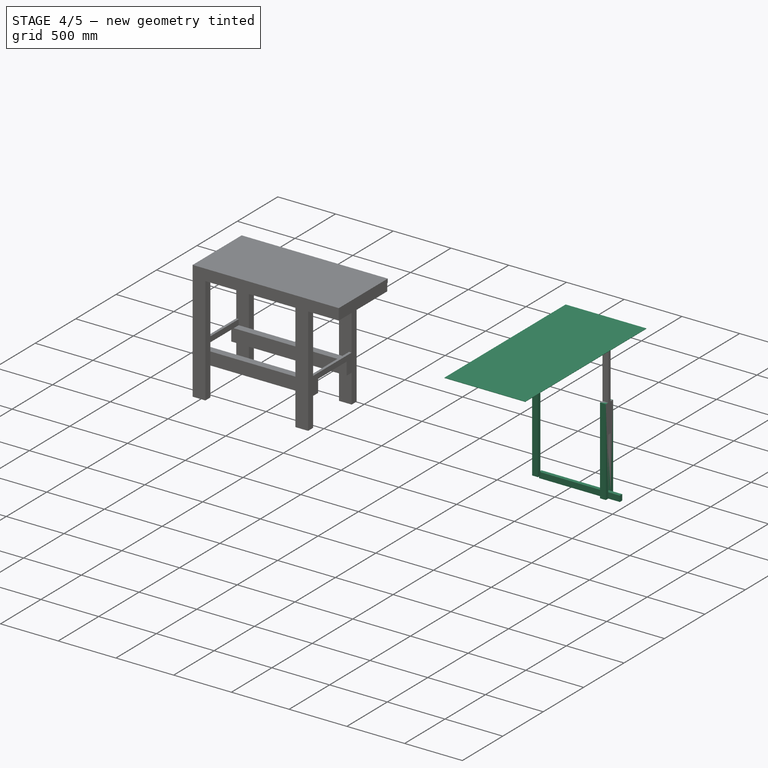
[diagram: stage 4 of 5 — iso view after this stage's code; geometry added in this stage tinted green]
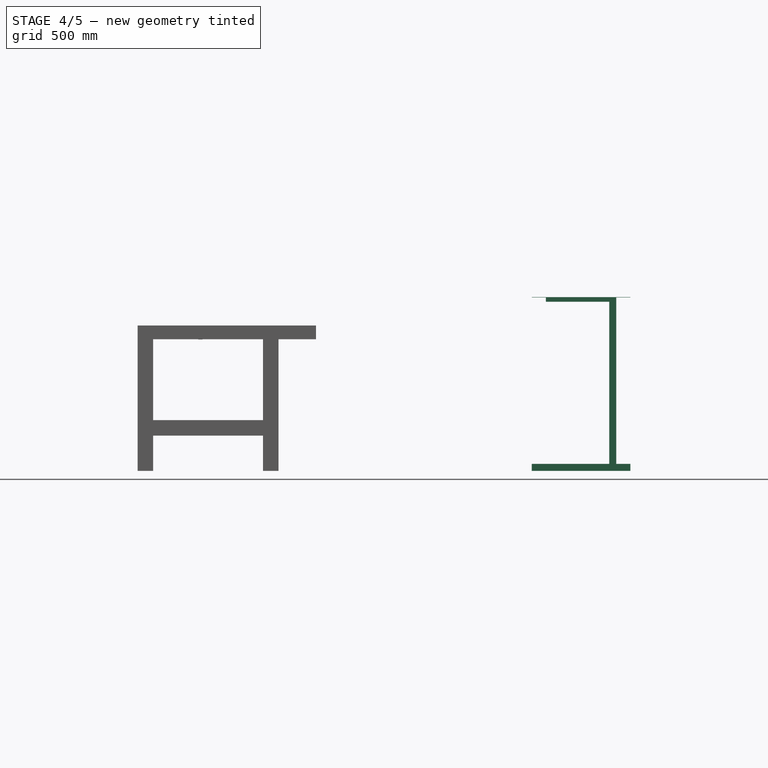
[diagram: stage 4 of 5 — front view after this stage's code; geometry added in this stage tinted green]
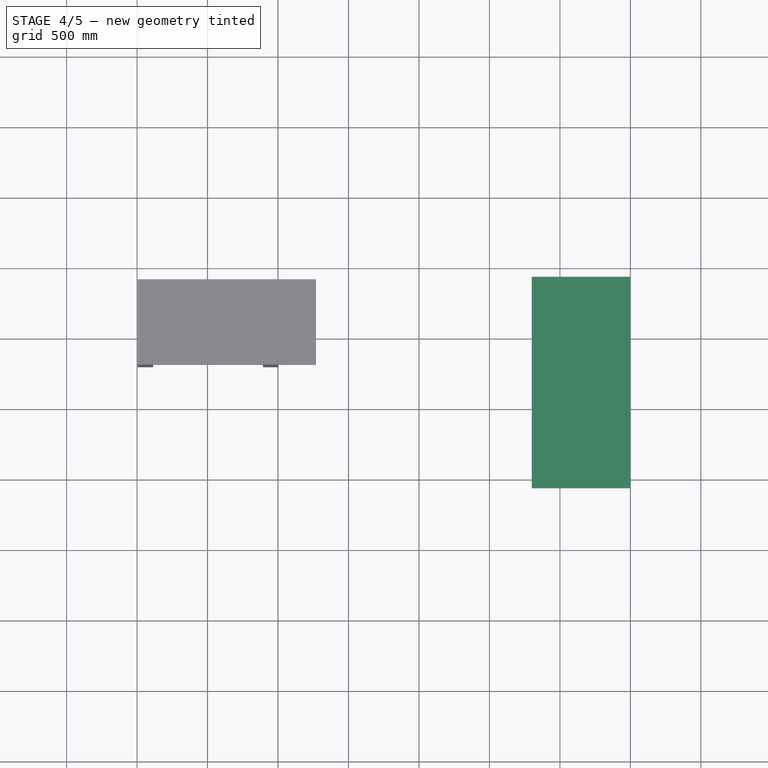
[diagram: stage 4 of 5 — top view after this stage's code; geometry added in this stage tinted green]
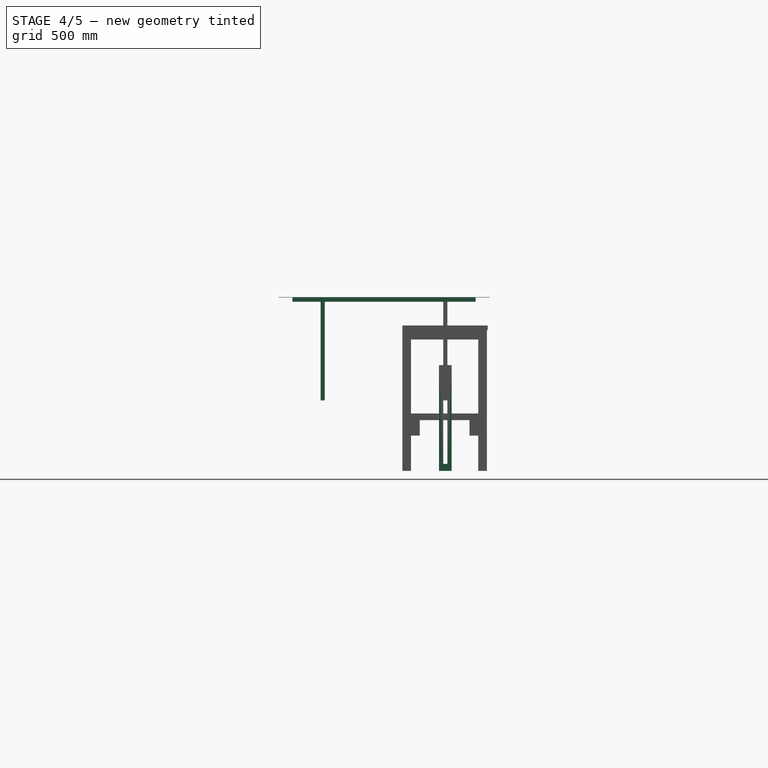
[diagram: stage 4 of 5 — right view after this stage's code; geometry added in this stage tinted green]
FEATURE [Sketcher::SketchObject] Sketch
  FullyConstrained = true
  MapMode = 5
  Support = -> [XY_Plane]
  sketch-geometry (4):
    g0: LineSegment StartX=0 StartY=-2100 StartZ=0 EndX=-2540 EndY=-2100 EndZ=0
    g1: LineSegment StartX=-2540 StartY=-2100 StartZ=0 EndX=-4536.31 EndY=0 EndZ=0
    g2: LineSegment StartX=-4536.31 StartY=0 StartZ=0 EndX=0 EndY=0 EndZ=0
    g3: LineSegment StartX=0 StartY=0 StartZ=0 EndX=0 EndY=-2100 EndZ=0
  constraints (11):
    c: Horizontal(g2)
    c: Horizontal(g0)
    c: Vertical(g3)
    c: Coincident(g3,g-1)
    c: Coincident(g3,g0)
    c: Coincident(g0,g1)
    c: Coincident(g1,g2)
    c: Coincident(g2,g3)
    c: DistanceY(g3,g3) = 2100
    c: DistanceX(g0,g0) = 2540
    c: Angle(g0,g1) = 2.33089
FEATURE [Sketcher::SketchObject] Sketch001
  FullyConstrained = true
  MapMode = 5
  Placement = pos=(0,0,0) rot=(0.57735,0.57735,0.57735;2.0944rad)
  Support = -> [YZ_Plane001]
  expr: Constraints[11] = 50 + 30 + 300
  sketch-geometry (4):
    g0: LineSegment StartX=-410 StartY=50 StartZ=0 EndX=-380 EndY=50 EndZ=0
    g1: LineSegment StartX=-380 StartY=50 StartZ=0 EndX=-380 EndY=0 EndZ=0
    g2: LineSegment StartX=-380 StartY=0 StartZ=0 EndX=-410 EndY=0 EndZ=0
    g3: LineSegment StartX=-410 StartY=0 StartZ=0 EndX=-410 EndY=50 EndZ=0
  constraints (12):
    c: Coincident(g0,g1)
    c: Coincident(g1,g2)
    c: Coincident(g2,g3)
    c: Coincident(g3,g0)
    c: Horizontal(g0)
    c: Horizontal(g2)
    c: Vertical(g1)
    c: Vertical(g3)
    c: DistanceY(g1,g1) = 50
    c: DistanceX(g2,g2) = 30
    c: DistanceY(g-1,g1) = 0
    c: DistanceX(g1,g-1) = 380
FEATURE [PartDesign::Pad] Pad  label="baseEsquerda"
  Direction = (1,1,1)
  Length = 700
  Length2 = 100
  Placement = pos=(0,0,0) rot=(0.57735,0.57735,0.57735;2.0944rad)
  Profile = -> Sketch001
  Reversed = true
  Type = 0
FEATURE [Sketcher::SketchObject] Sketch002
  FullyConstrained = true
  MapMode = 5
  Placement = pos=(-1.804e-13,-410,9.02e-14) rot=(-0.57735,-0.57735,0.57735;4.18879rad)
  Support = -> [Pad]
  sketch-geometry (4):
    g0: LineSegment StartX=-750 StartY=-100 StartZ=0 EndX=0 EndY=-100 EndZ=0
    g1: LineSegment StartX=0 StartY=-100 StartZ=0 EndX=0 EndY=-150 EndZ=0
    g2: LineSegment StartX=0 StartY=-150 StartZ=0 EndX=-750 EndY=-150 EndZ=0
    g3: LineSegment StartX=-750 StartY=-150 StartZ=0 EndX=-750 EndY=-100 EndZ=0
  constraints (12):
    c: Coincident(g0,g1)
    c: Coincident(g1,g2)
    c: Coincident(g2,g3)
    c: Coincident(g3,g0)
    c: Horizontal(g0)
    c: Horizontal(g2)
    c: Vertical(g1)
    c: Vertical(g3)
    c: DistanceY(g1,g1) = 50
    c: DistanceX(g2,g2) = 750
    c: DistanceX(g-1,g0) = 0
    c: DistanceY(g0,g-1) = 100
FEATURE [PartDesign::Pad] Pad001  label="peEsquerdo1"
  BaseFeature = -> Pad
  Direction = (1,1,1)
  Length = 30
  Length2 = 100
  Placement = pos=(0,0,0) rot=(0.57735,0.57735,0.57735;2.0944rad)
  Profile = -> Sketch002
  Type = 0
FEATURE [Sketcher::SketchObject] Sketch003
  ExternalGeometry = -> [Pad001]
  FullyConstrained = true
  MapMode = 5
  Placement = pos=(-1.672e-13,-380,8.36e-14) rot=(0.57735,0.57735,0.57735;4.18879rad)
  Support = -> [Pad001]
  sketch-geometry (4):
    g0: LineSegment StartX=0 StartY=-100 StartZ=0 EndX=750 EndY=-100 EndZ=0
    g1: LineSegment StartX=750 StartY=-100 StartZ=0 EndX=750 EndY=-150 EndZ=0
    g2: LineSegment StartX=750 StartY=-150 StartZ=0 EndX=0 EndY=-150 EndZ=0
    g3: LineSegment StartX=0 StartY=-150 StartZ=0 EndX=0 EndY=-100 EndZ=0
  constraints (12):
    c: Coincident(g0,g1)
    c: Coincident(g1,g2)
    c: Coincident(g2,g3)
    c: Coincident(g3,g0)
    c: Horizontal(g0)
    c: Horizontal(g2)
    c: Vertical(g1)
    c: Vertical(g3)
    c: DistanceY(g3,g3) = 50
    c: DistanceX(g0,g0) = 750
    c: DistanceX(g2,g-1) = 0
    c: DistanceY(g0,g-3) = 0
FEATURE [PartDesign::Pad] Pad002  label="peEsquerdo2"
  BaseFeature = -> Pad001
  Direction = (1,1,1)
  Length = 30
  Length2 = 100
  Placement = pos=(0,0,0) rot=(0.57735,0.57735,0.57735;2.0944rad)
  Profile = -> Sketch003
  Type = 0
FEATURE [Sketcher::SketchObject] Sketch011
  ExternalGeometry = -> [Pad009]
  FullyConstrained = true
  MapMode = 5
  Placement = pos=(0,0,1200) rot=(0,0,1;0rad)
  Support = -> [Pad009]
  expr: Constraints[11] = (1800 - (1280 + 30 + 30 + 30 + 30)) / 2
  expr: Constraints[9] = 1500 - 100 - 100
  sketch-geometry (4):
    g0: LineSegment StartX=-150 StartY=-180 StartZ=0 EndX=-100 EndY=-180 EndZ=0
    g1: LineSegment StartX=-100 StartY=-180 StartZ=0 EndX=-100 EndY=-1480 EndZ=0
    g2: LineSegment StartX=-100 StartY=-1480 StartZ=0 EndX=-150 EndY=-1480 EndZ=0
    g3: LineSegment StartX=-150 StartY=-1480 StartZ=0 EndX=-150 EndY=-180 EndZ=0
  constraints (12):
    c: Coincident(g0,g1)
    c: Coincident(g1,g2)
    c: Coincident(g2,g3)
    c: Coincident(g3,g0)
    c: Horizontal(g0)
    c: Horizontal(g2)
    c: Vertical(g1)
    c: Vertical(g3)
    c: DistanceX(g0,g0) = 50
    c: DistanceY(g1,g1) = 1300
    c: DistanceX(g0,g-3) = 0
    c: DistanceY(g-3,g0) = 200
FEATURE [PartDesign::Pad] Pad010  label="viga"
  BaseFeature = -> Pad009
  Direction = (1,1,1)
  Length = 30
  Length2 = 100
  Profile = -> Sketch011
  Type = 0
FEATURE [Sketcher::SketchObject] Sketch012
  ExternalGeometry = -> [Pad010]
  FullyConstrained = true
  MapMode = 5
  Placement = pos=(0,0,1200) rot=(1,0,0;3.14159rad)
  Support = -> [Pad010]
  expr: Constraints[10] = 780 + 30 + 30
  sketch-geometry (4):
    g0: LineSegment StartX=-150 StartY=1280 StartZ=0 EndX=-100 EndY=1280 EndZ=0
    g1: LineSegment StartX=-100 StartY=1280 StartZ=0 EndX=-100 EndY=1250 EndZ=0
    g2: LineSegment StartX=-100 StartY=1250 StartZ=0 EndX=-150 EndY=1250 EndZ=0
    g3: LineSegment StartX=-150 StartY=1250 StartZ=0 EndX=-150 EndY=1280 EndZ=0
  constraints (12):
    c: Coincident(g0,g1)
    c: Coincident(g1,g2)
    c: Coincident(g2,g3)
    c: Coincident(g3,g0)
    c: Horizontal(g0)
    c: Horizontal(g2)
    c: Vertical(g1)
    c: Vertical(g3)
    c: DistanceX(g0,g0) = 50
    c: DistanceY(g3,g3) = 30
    c: DistanceY(g-4,g1) = 840
    c: DistanceX(g-4,g1) = 0
FEATURE [PartDesign::Pad] Pad011  label="baseDireita001"
  BaseFeature = -> Pad010
  Direction = (1,1,1)
  Length = 700
  Length2 = 100
  Profile = -> Sketch012
  Type = 0
  expr: Length = 750 - 50
FEATURE [Sketcher::SketchObject] Sketch013
  ExternalGeometry = -> [Pad011]
  FullyConstrained = true
  MapMode = 5
  Placement = pos=(-150,0,0) rot=(0.57735,-0.57735,-0.57735;2.0944rad)
  Support = -> [Pad011]
  sketch-geometry (8):
    g0: LineSegment StartX=360 StartY=1230 StartZ=0 EndX=410 EndY=1230 EndZ=0
    g1: LineSegment StartX=410 StartY=1230 StartZ=0 EndX=410 EndY=1200 EndZ=0
    g2: LineSegment StartX=410 StartY=1200 StartZ=0 EndX=360 EndY=1200 EndZ=0
    g3: LineSegment StartX=360 StartY=1200 StartZ=0 EndX=360 EndY=1230 EndZ=0
    g4: LineSegment StartX=1250 StartY=1230 StartZ=0 EndX=1300 EndY=1230 EndZ=0
    g5: LineSegment StartX=1300 StartY=1230 StartZ=0 EndX=1300 EndY=1200 EndZ=0
    g6: LineSegment StartX=1300 StartY=1200 StartZ=0 EndX=1250 EndY=1200 EndZ=0
    g7: LineSegment StartX=1250 StartY=1200 StartZ=0 EndX=1250 EndY=1230 EndZ=0
  constraints (22):
    c: Coincident(g0,g1)
    c: Coincident(g1,g2)
    c: Coincident(g2,g3)
    c: Coincident(g3,g0)
    c: Horizontal(g0)
    c: Horizontal(g2)
    c: Vertical(g1)
    c: Vertical(g3)
    c: Coincident(g4,g5)
    c: Coincident(g5,g6)
    c: Coincident(g6,g7)
    c: Coincident(g7,g4)
    c: Horizontal(g4)
    c: Horizontal(g6)
    c: Vertical(g5)
    c: Vertical(g7)
    c: DistanceX(g0,g0) = 50
    c: Equal(g0,g4)
    c: DistanceY(g3,g3) = 30
    c: Equal(g3,g7)
    c: Coincident(g1,g-3)
    c: Coincident(g6,g-5)
FEATURE [PartDesign::Pad] Pad012  label="tirantes"
  BaseFeature = -> Pad011
  Direction = (1,1,1)
  Length = 400
  Length2 = 100
  Profile = -> Sketch013
  Type = 0
  expr: Length = 700 - 100 - 50 - 100 - 50
FEATURE [Sketcher::SketchObject] Sketch014
  ExternalGeometry = -> [Pad012]
  FullyConstrained = true
  MapMode = 5
  Placement = pos=(-550,0,0) rot=(0.57735,-0.57735,-0.57735;2.0944rad)
  Support = -> [Pad012]
  sketch-geometry (4):
    g0: LineSegment StartX=180 StartY=1230 StartZ=0 EndX=1480 EndY=1230 EndZ=0
    g1: LineSegment StartX=1480 StartY=1230 StartZ=0 EndX=1480 EndY=1200 EndZ=0
    g2: LineSegment StartX=1480 StartY=1200 StartZ=0 EndX=180 EndY=1200 EndZ=0
    g3: LineSegment StartX=180 StartY=1200 StartZ=0 EndX=180 EndY=1230 EndZ=0
  constraints (12):
    c: Coincident(g0,g1)
    c: Coincident(g1,g2)
    c: Coincident(g2,g3)
    c: Coincident(g3,g0)
    c: Horizontal(g0)
    c: Horizontal(g2)
    c: Vertical(g1)
    c: Vertical(g3)
    c: DistanceY(g3,g3) = 30
    c: DistanceX(g0,g0) = 1300
    c: DistanceY(g0,g-3) = 0
    c: DistanceX(g0,g-3) = 180
FEATURE [PartDesign::Pad] Pad013  label="viga2"
  BaseFeature = -> Pad012
  Direction = (1,1,1)
  Length = 50
  Length2 = 100
  Profile = -> Sketch014
  Type = 0
FEATURE [Sketcher::SketchObject] Sketch015
  ExternalGeometry = -> [Pad013]
  FullyConstrained = true
  MapMode = 5
  Placement = pos=(0,0,1230) rot=(0,0,1;0rad)
  Support = -> [Pad013]
  expr: Constraints[11] = (2000 - 1800) / 2
  sketch-geometry (4):
    g0: LineSegment StartX=-700 StartY=-80 StartZ=0 EndX=0 EndY=-80 EndZ=0
    g1: LineSegment StartX=0 StartY=-80 StartZ=0 EndX=0 EndY=-1580 EndZ=0
    g2: LineSegment StartX=0 StartY=-1580 StartZ=0 EndX=-700 EndY=-1580 EndZ=0
    g3: LineSegment StartX=-700 StartY=-1580 StartZ=0 EndX=-700 EndY=-80 EndZ=0
  constraints (12):
    c: Coincident(g0,g1)
    c: Coincident(g1,g2)
    c: Coincident(g2,g3)
    c: Coincident(g3,g0)
    c: Horizontal(g0)
    c: Horizontal(g2)
    c: Vertical(g1)
    c: Vertical(g3)
    c: DistanceY(g3,g3) = 1500
    c: DistanceX(g2,g2) = 700
    c: DistanceX(g0,g-1) = 0
    c: DistanceY(g-3,g0) = 100
FEATURE [PartDesign::Pad] Pad014  label="tampo"
  BaseFeature = -> Pad013
  Direction = (1,1,1)
  Length = 3
  Length2 = 100
  Profile = -> Sketch015
  Type = 0
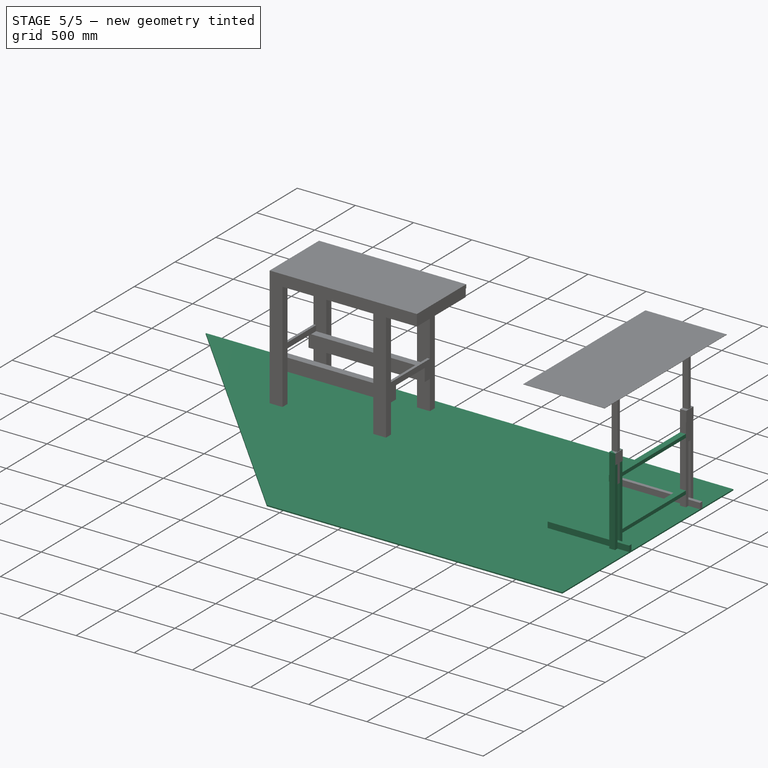
[diagram: stage 5 of 5 — iso view after this stage's code; geometry added in this stage tinted green]
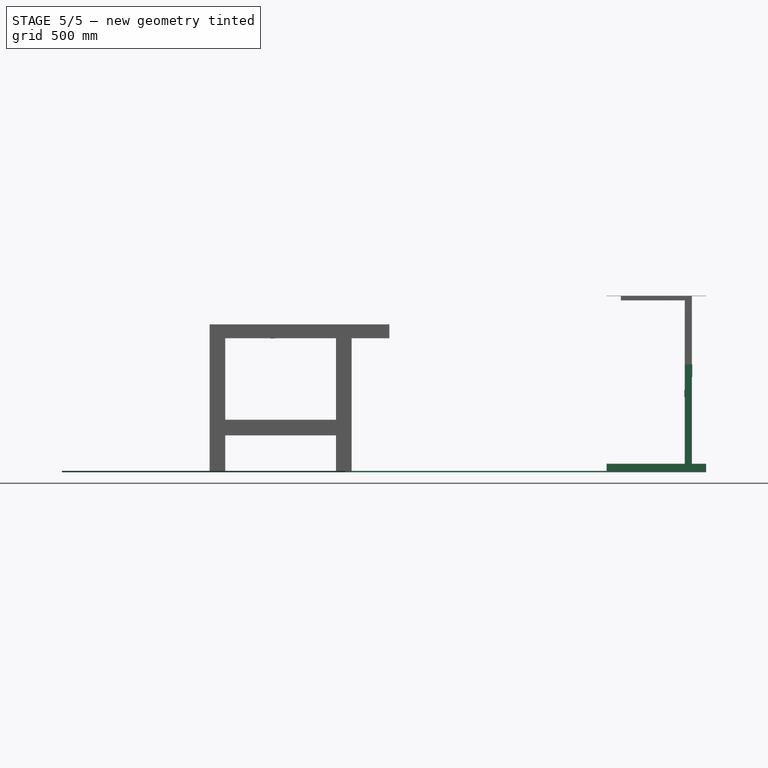
[diagram: stage 5 of 5 — front view after this stage's code; geometry added in this stage tinted green]
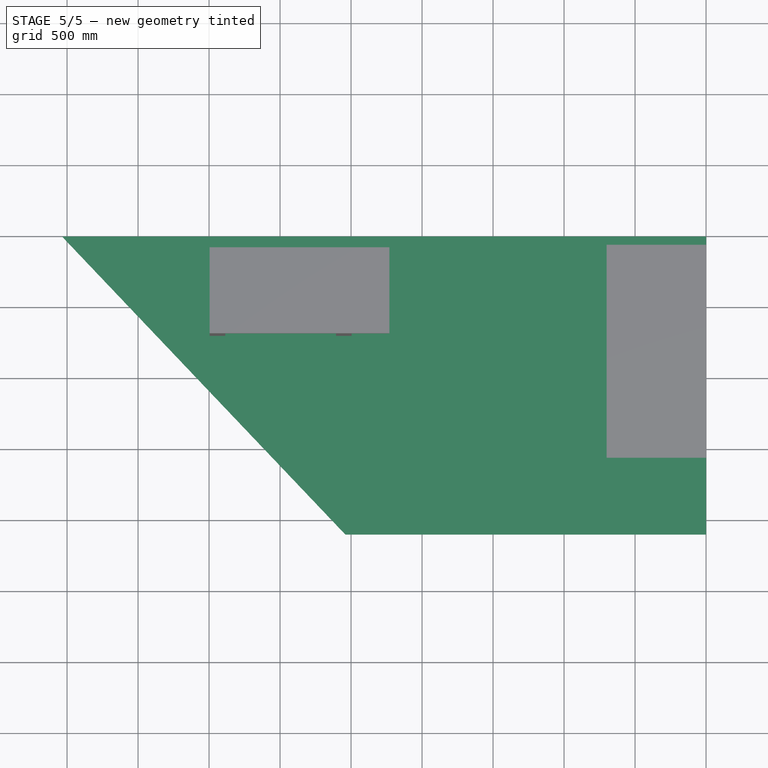
[diagram: stage 5 of 5 — top view after this stage's code; geometry added in this stage tinted green]
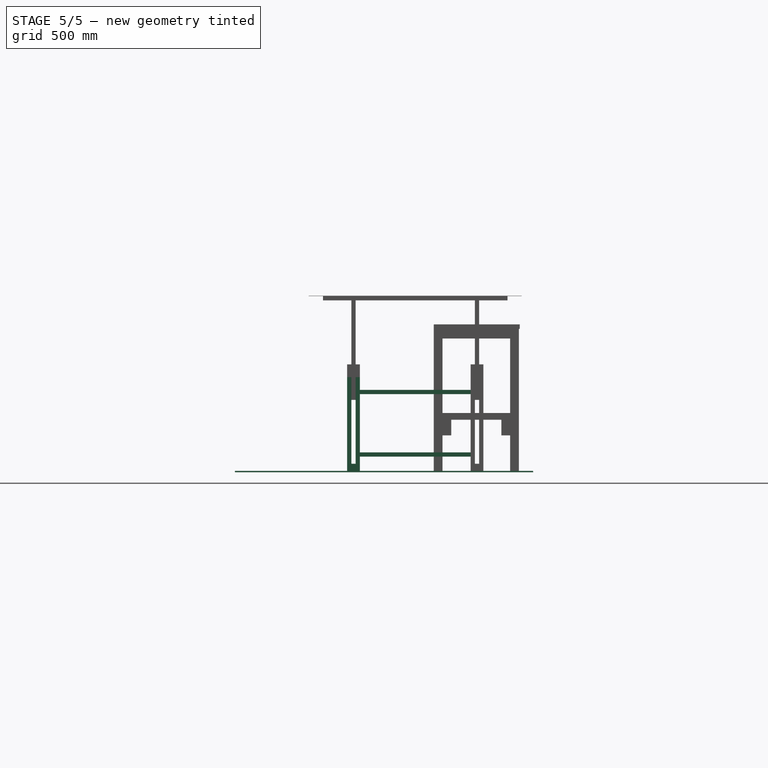
[diagram: stage 5 of 5 — right view after this stage's code; geometry added in this stage tinted green]
FEATURE [Sketcher::SketchObject] Sketch004
  ExternalGeometry = -> [Pad002]
  FullyConstrained = true
  MapMode = 5
  Placement = pos=(0,-440,6.6e-14) rot=(0.57735,0.57735,-0.57735;2.0944rad)
  Support = -> [Pad002]
  sketch-geometry (8):
    g0: LineSegment StartX=-130 StartY=-100 StartZ=0 EndX=-100 EndY=-100 EndZ=0
    g1: LineSegment StartX=-100 StartY=-100 StartZ=0 EndX=-100 EndY=-150 EndZ=0
    g2: LineSegment StartX=-100 StartY=-150 StartZ=0 EndX=-130 EndY=-150 EndZ=0
    g3: LineSegment StartX=-130 StartY=-150 StartZ=0 EndX=-130 EndY=-100 EndZ=0
    g4: LineSegment StartX=-540 StartY=-100 StartZ=0 EndX=-570 EndY=-100 EndZ=0
    g5: LineSegment StartX=-570 StartY=-100 StartZ=0 EndX=-570 EndY=-150 EndZ=0
    g6: LineSegment StartX=-570 StartY=-150 StartZ=0 EndX=-540 EndY=-150 EndZ=0
    g7: LineSegment StartX=-540 StartY=-150 StartZ=0 EndX=-540 EndY=-100 EndZ=0
  constraints (24):
    c: Coincident(g0,g1)
    c: Coincident(g1,g2)
    c: Coincident(g2,g3)
    c: Coincident(g3,g0)
    c: Horizontal(g0)
    c: Horizontal(g2)
    c: Vertical(g1)
    c: Vertical(g3)
    c: Coincident(g4,g5)
    c: Coincident(g5,g6)
    c: Coincident(g6,g7)
    c: Coincident(g7,g4)
    c: Horizontal(g4)
    c: Horizontal(g6)
    c: Vertical(g5)
    c: Vertical(g7)
    c: DistanceY(g1,g1) = 50
    c: Equal(g1,g5)
    c: DistanceX(g0,g0) = 30
    c: Equal(g2,g6)
    c: DistanceX(g1,g-1) = 100
    c: DistanceY(g-3,g1) = 0
    c: DistanceY(g-3,g5) = 0
    c: DistanceX(g-3,g5) = 180
FEATURE [PartDesign::Pad] Pad003  label="vigas"
  BaseFeature = -> Pad002
  Direction = (1,1,1)
  Length = 780
  Length2 = 100
  Placement = pos=(0,0,0) rot=(0.57735,0.57735,0.57735;2.0944rad)
  Profile = -> Sketch004
  Type = 0
  expr: Length = 1500 - 300 - 300 - 30 - 30 - 30 - 30
FEATURE [Sketcher::SketchObject] Sketch005
  ExternalGeometry = -> [Pad003]
  FullyConstrained = true
  MapMode = 5
  Placement = pos=(-6.954e-13,-1220,1.159e-12) rot=(0.57735,0.57735,-0.57735;2.0944rad)
  Support = -> [Pad003]
  sketch-geometry (4):
    g0: LineSegment StartX=-750 StartY=-100 StartZ=0 EndX=-5.684e-13 EndY=-100 EndZ=0
    g1: LineSegment StartX=-5.684e-13 StartY=-100 StartZ=0 EndX=-5.684e-13 EndY=-150 EndZ=0
    g2: LineSegment StartX=-5.684e-13 StartY=-150 StartZ=0 EndX=-750 EndY=-150 EndZ=0
    g3: LineSegment StartX=-750 StartY=-150 StartZ=0 EndX=-750 EndY=-100 EndZ=0
  constraints (11):
    c: Coincident(g0,g1)
    c: Coincident(g1,g2)
    c: Coincident(g2,g3)
    c: Coincident(g3,g0)
    c: Horizontal(g0)
    c: Horizontal(g2)
    c: Vertical(g1)
    c: Vertical(g3)
    c: Coincident(g0,g-5)
    c: DistanceX(g2,g2) = 750
    c: DistanceY(g3,g3) = 50
FEATURE [PartDesign::Pad] Pad004  label="peDireito1"
  BaseFeature = -> Pad003
  Direction = (1,1,1)
  Length = 30
  Length2 = 100
  Placement = pos=(0,0,0) rot=(0.57735,0.57735,0.57735;2.0944rad)
  Profile = -> Sketch005
  Type = 0
FEATURE [Sketcher::SketchObject] Sketch006
  ExternalGeometry = -> [Pad004]
  FullyConstrained = true
  MapMode = 5
  Placement = pos=(-2.8375e-12,-1250,9.5e-13) rot=(-0.57735,-0.57735,0.57735;4.18879rad)
  Support = -> [Pad004]
  sketch-geometry (4):
    g0: LineSegment StartX=-50 StartY=0 StartZ=0 EndX=0 EndY=0 EndZ=0
    g1: LineSegment StartX=0 StartY=0 StartZ=0 EndX=0 EndY=-700 EndZ=0
    g2: LineSegment StartX=0 StartY=-700 StartZ=0 EndX=-50 EndY=-700 EndZ=0
    g3: LineSegment StartX=-50 StartY=-700 StartZ=0 EndX=-50 EndY=0 EndZ=0
  constraints (10):
    c: Coincident(g0,g1)
    c: Coincident(g1,g2)
    c: Coincident(g2,g3)
    c: Coincident(g3,g0)
    c: Horizontal(g0)
    c: Horizontal(g2)
    c: Vertical(g1)
    c: Vertical(g3)
    c: Coincident(g0,g-1)
    c: Coincident(g2,g-3)
FEATURE [PartDesign::Pad] Pad005  label="baseDireita"
  BaseFeature = -> Pad004
  Direction = (1,1,1)
  Length = 30
  Length2 = 100
  Placement = pos=(0,0,0) rot=(0.57735,0.57735,0.57735;2.0944rad)
  Profile = -> Sketch006
  Type = 0
FEATURE [Sketcher::SketchObject] Sketch007
  ExternalGeometry = -> [Pad005]
  FullyConstrained = true
  MapMode = 5
  Placement = pos=(-3.328e-12,-1280,0) rot=(0.57735,0.57735,-0.57735;2.0944rad)
  Support = -> [Pad005]
  sketch-geometry (4):
    g0: LineSegment StartX=-750 StartY=-100 StartZ=0 EndX=-2.0464e-12 EndY=-100 EndZ=0
    g1: LineSegment StartX=-2.0464e-12 StartY=-100 StartZ=0 EndX=-2.0464e-12 EndY=-150 EndZ=0
    g2: LineSegment StartX=-2.0464e-12 StartY=-150 StartZ=0 EndX=-750 EndY=-150 EndZ=0
    g3: LineSegment StartX=-750 StartY=-150 StartZ=0 EndX=-750 EndY=-100 EndZ=0
  constraints (11):
    c: Coincident(g0,g1)
    c: Coincident(g1,g2)
    c: Coincident(g2,g3)
    c: Coincident(g3,g0)
    c: Horizontal(g0)
    c: Horizontal(g2)
    c: Vertical(g1)
    c: Vertical(g3)
    c: Coincident(g0,g-3)
    c: DistanceX(g2,g2) = 750
    c: DistanceY(g3,g3) = 50
FEATURE [PartDesign::Pad] Pad006  label="peDireito2"
  BaseFeature = -> Pad005
  Direction = (1,1,1)
  Length = 30
  Length2 = 100
  Placement = pos=(0,0,0) rot=(0.57735,0.57735,0.57735;2.0944rad)
  Profile = -> Sketch007
  Type = 0
FEATURE [Sketcher::SketchObject] Sketch008
  ExternalGeometry = -> [Pad006]
  FullyConstrained = true
  MapMode = 5
  Placement = pos=(-150,5.85e-14,-6.6e-14) rot=(0.57735,0.57735,-0.57735;4.18879rad)
  Support = -> [Pad006]
  sketch-geometry (8):
    g0: LineSegment StartX=-1310 StartY=-520 StartZ=0 EndX=-1220 EndY=-520 EndZ=0
    g1: LineSegment StartX=-1220 StartY=-520 StartZ=0 EndX=-1220 EndY=-570 EndZ=0
    g2: LineSegment StartX=-1220 StartY=-570 StartZ=0 EndX=-1310 EndY=-570 EndZ=0
    g3: LineSegment StartX=-1310 StartY=-570 StartZ=0 EndX=-1310 EndY=-520 EndZ=0
    g4: LineSegment StartX=-350 StartY=-520 StartZ=0 EndX=-440 EndY=-520 EndZ=0
    g5: LineSegment StartX=-440 StartY=-520 StartZ=0 EndX=-440 EndY=-570 EndZ=0
    g6: LineSegment StartX=-440 StartY=-570 StartZ=0 EndX=-350 EndY=-570 EndZ=0
    g7: LineSegment StartX=-350 StartY=-570 StartZ=0 EndX=-350 EndY=-520 EndZ=0
  constraints (22):
    c: Coincident(g0,g1)
    c: Coincident(g1,g2)
    c: Coincident(g2,g3)
    c: Coincident(g3,g0)
    c: Horizontal(g0)
    c: Horizontal(g2)
    c: Vertical(g1)
    c: Vertical(g3)
    c: Coincident(g4,g5)
    c: Coincident(g5,g6)
    c: Coincident(g6,g7)
    c: Coincident(g7,g4)
    c: Horizontal(g4)
    c: Horizontal(g6)
    c: Vertical(g5)
    c: Vertical(g7)
    c: DistanceY(g1,g1) = 50
    c: Equal(g1,g7)
    c: DistanceX(g0,g0) = 90
    c: Equal(g2,g6)
    c: Coincident(g1,g-5)
    c: Coincident(g5,g-5)
FEATURE [PartDesign::Pad] Pad007  label="reforço"
  BaseFeature = -> Pad006
  Direction = (1,1,1)
  Length = 3
  Length2 = 100
  Placement = pos=(0,0,0) rot=(0.57735,0.57735,0.57735;2.0944rad)
  Profile = -> Sketch008
  Type = 0
FEATURE [Sketcher::SketchObject] Sketch009
  ExternalGeometry = -> [Pad007]
  FullyConstrained = true
  MapMode = 5
  Placement = pos=(-100,2.78e-13,0) rot=(0.57735,0.57735,0.57735;2.0944rad)
  Support = -> [Pad007]
  sketch-geometry (8):
    g0: LineSegment StartX=-1310 StartY=660 StartZ=0 EndX=-1220 EndY=660 EndZ=0
    g1: LineSegment StartX=-1220 StartY=660 StartZ=0 EndX=-1220 EndY=750 EndZ=0
    g2: LineSegment StartX=-1220 StartY=750 StartZ=0 EndX=-1310 EndY=750 EndZ=0
    g3: LineSegment StartX=-1310 StartY=750 StartZ=0 EndX=-1310 EndY=660 EndZ=0
    g4: LineSegment StartX=-350 StartY=750 StartZ=0 EndX=-440 EndY=750 EndZ=0
    g5: LineSegment StartX=-440 StartY=750 StartZ=0 EndX=-440 EndY=660 EndZ=0
    g6: LineSegment StartX=-440 StartY=660 StartZ=0 EndX=-350 EndY=660 EndZ=0
    g7: LineSegment StartX=-350 StartY=660 StartZ=0 EndX=-350 EndY=750 EndZ=0
  constraints (24):
    c: Coincident(g0,g1)
    c: Coincident(g1,g2)
    c: Coincident(g2,g3)
    c: Coincident(g3,g0)
    c: Horizontal(g0)
    c: Horizontal(g2)
    c: Vertical(g1)
    c: Vertical(g3)
    c: Coincident(g4,g5)
    c: Coincident(g5,g6)
    c: Coincident(g6,g7)
    c: Coincident(g7,g4)
    c: Horizontal(g4)
    c: Horizontal(g6)
    c: Vertical(g5)
    c: Vertical(g7)
    c: DistanceX(g0,g0) = 90
    c: Equal(g0,g1)
    c: Equal(g0,g4)
    c: Equal(g4,g5)
    c: DistanceX(g-3,g2) = 0
    c: DistanceY(g2,g-3) = 0
    c: DistanceX(g4,g-4) = 0
    c: DistanceY(g4,g-4) = 0
FEATURE [PartDesign::Pad] Pad008  label="Juncao"
  BaseFeature = -> Pad007
  Direction = (1,1,1)
  Length = 3
  Length2 = 100
  Placement = pos=(0,0,0) rot=(0.57735,0.57735,0.57735;2.0944rad)
  Profile = -> Sketch009
  Type = 0
FEATURE [PartDesign::Body] Body002  label="parteDeCima"
  Group = -> [Sketch010,Pad009,Sketch011,Pad010,Sketch012,Pad011,Sketch013,Pad012,Sketch014,Pad013,Sketch015,Pad014]
  Origin = -> Origin002
  Tip = -> Pad014
FEATURE [PartDesign::Pad] Pad015
  Direction = (1,1,1)
  Length = 10
  Length2 = 100
  Profile = -> Sketch
  Reversed = true
  Type = 0
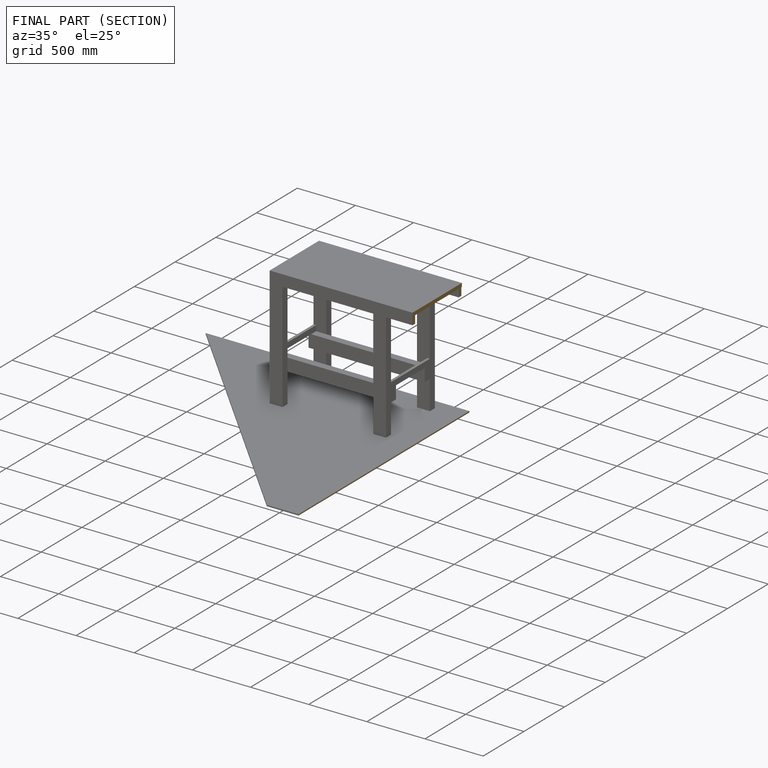
[diagram: finished part — half-section view (interior)]
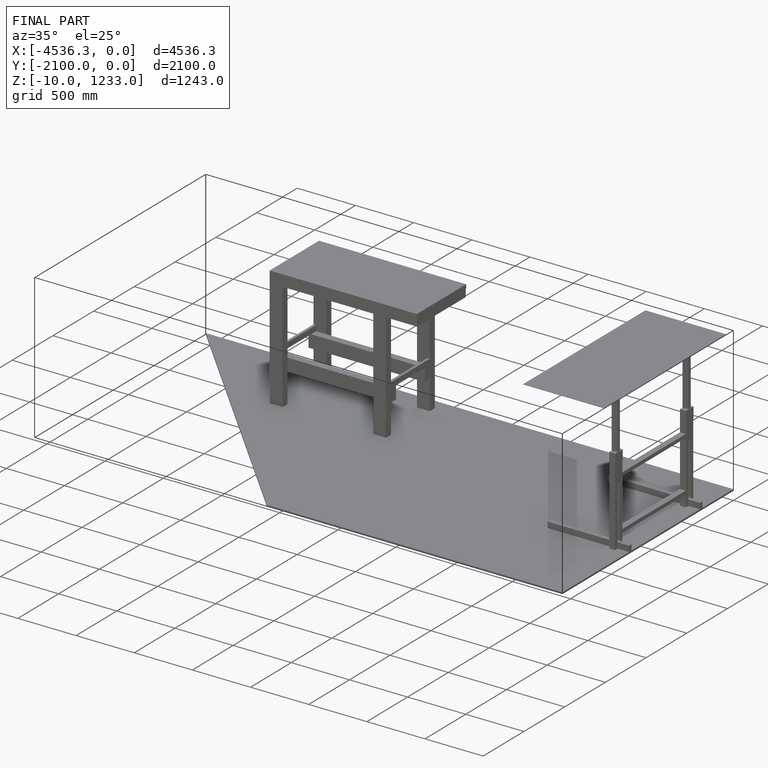
[diagram: finished part — iso view with bounding-box wireframe]
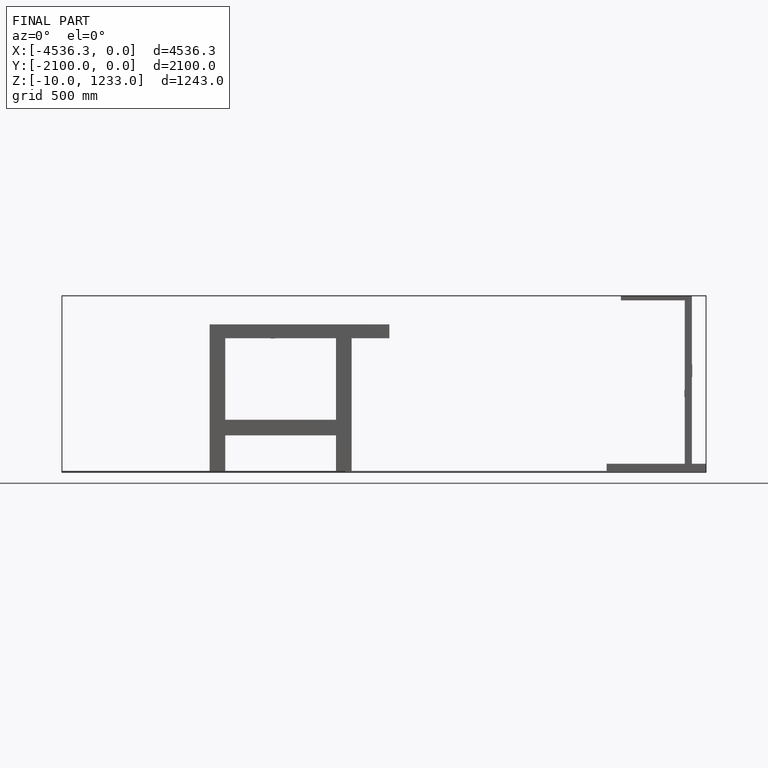
[diagram: finished part — front view with bounding-box wireframe]
